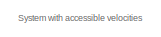
[diagram: root canvas - part 1/10, top center region]
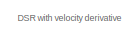
[diagram: root canvas - part 2/10, top left region]
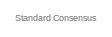
[diagram: root canvas - part 3/10, top right region]
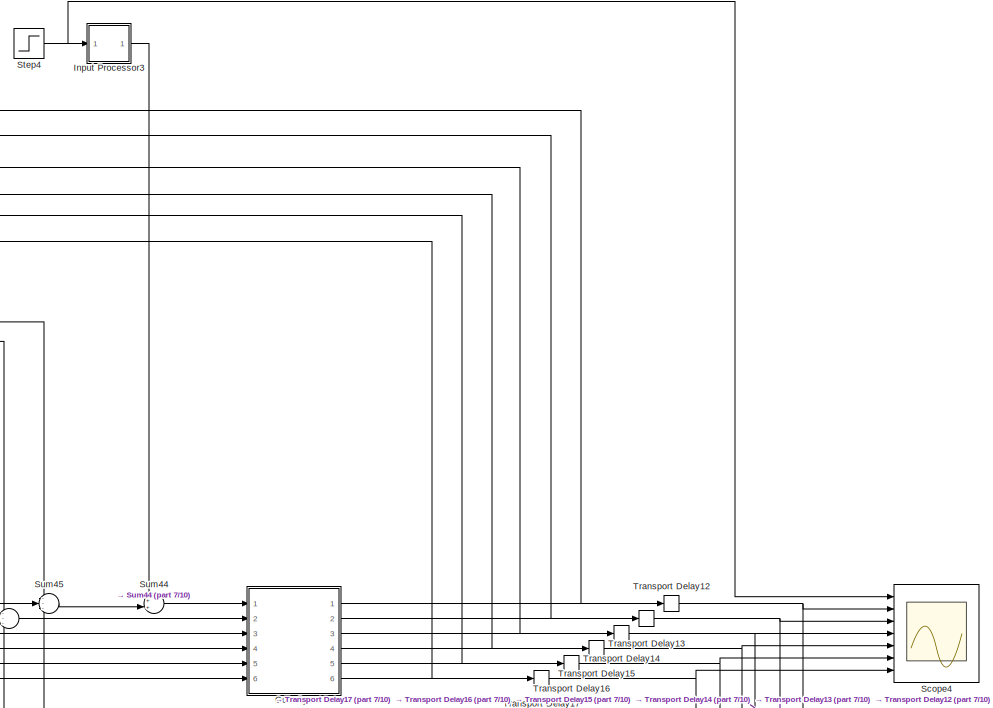
[diagram: root canvas - part 4/10, middle right region]
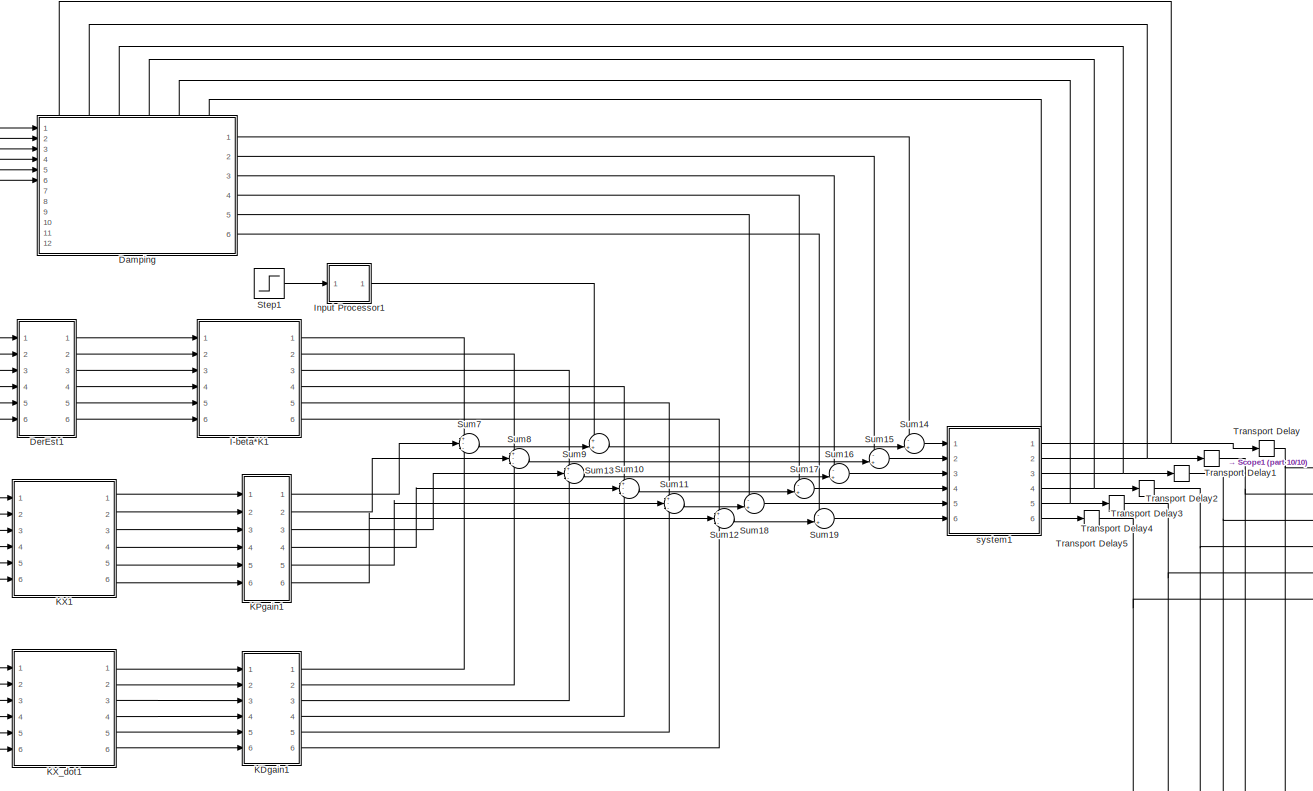
[diagram: root canvas - part 5/10, middle left region]
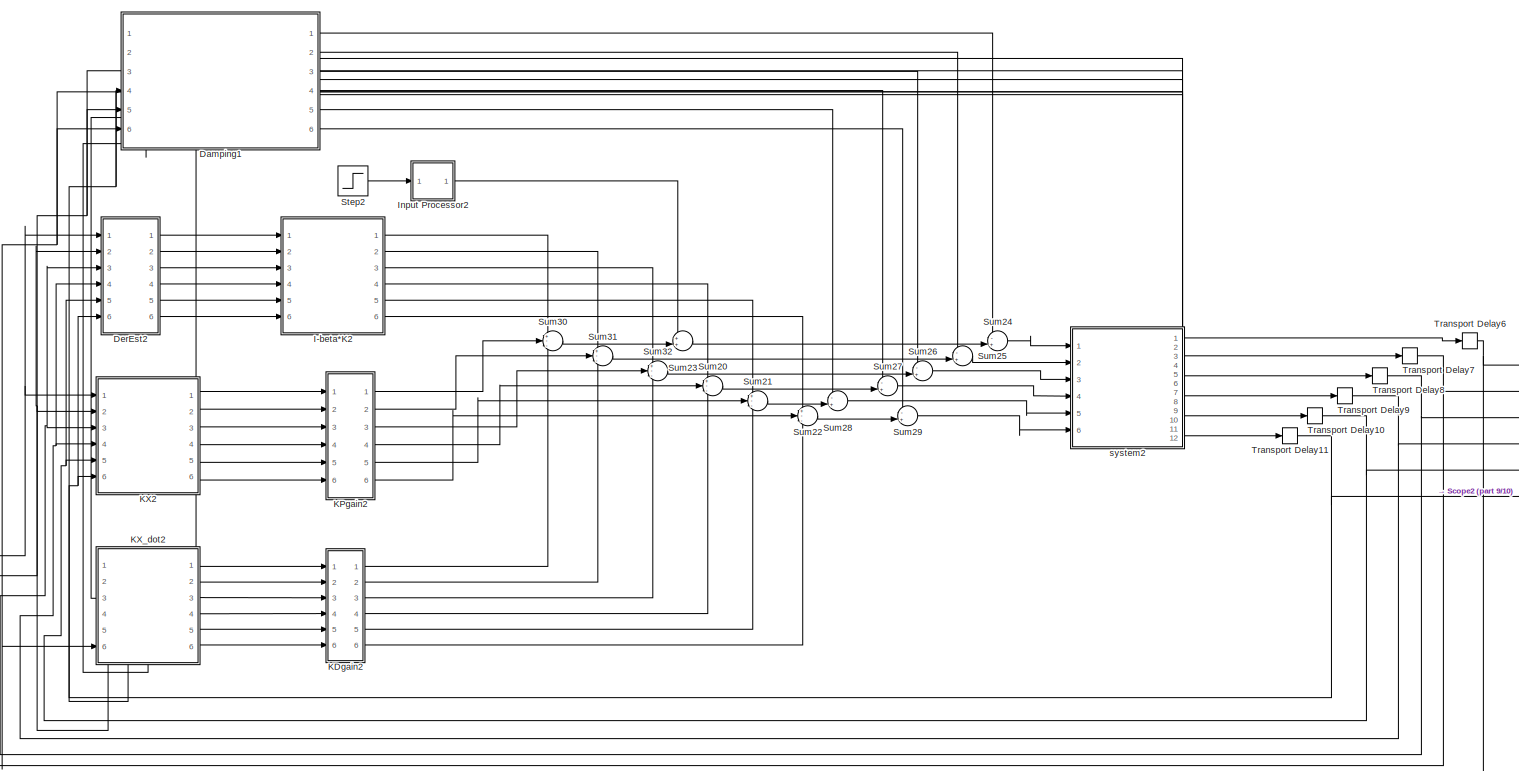
[diagram: root canvas - part 6/10, central region]
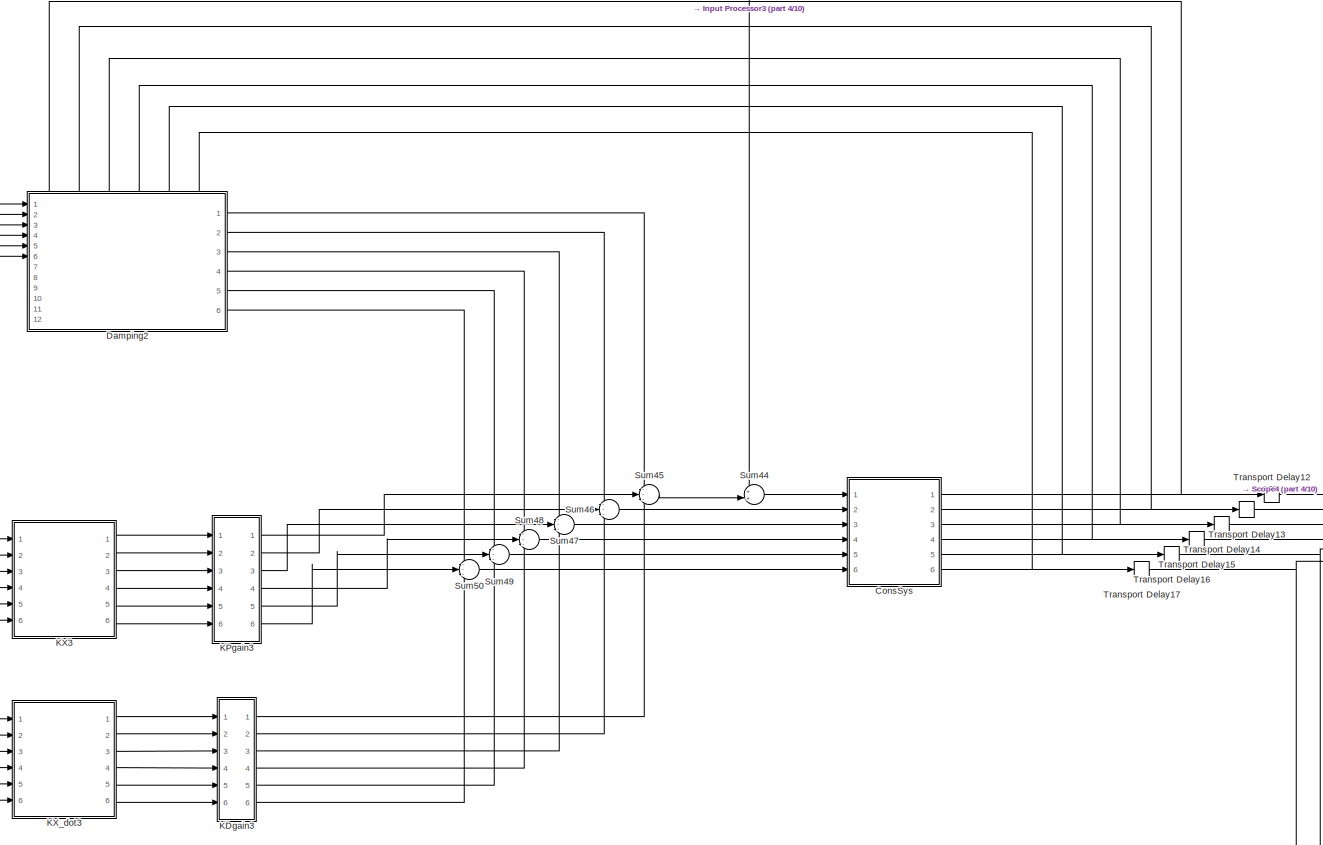
[diagram: root canvas - part 7/10, middle right region]
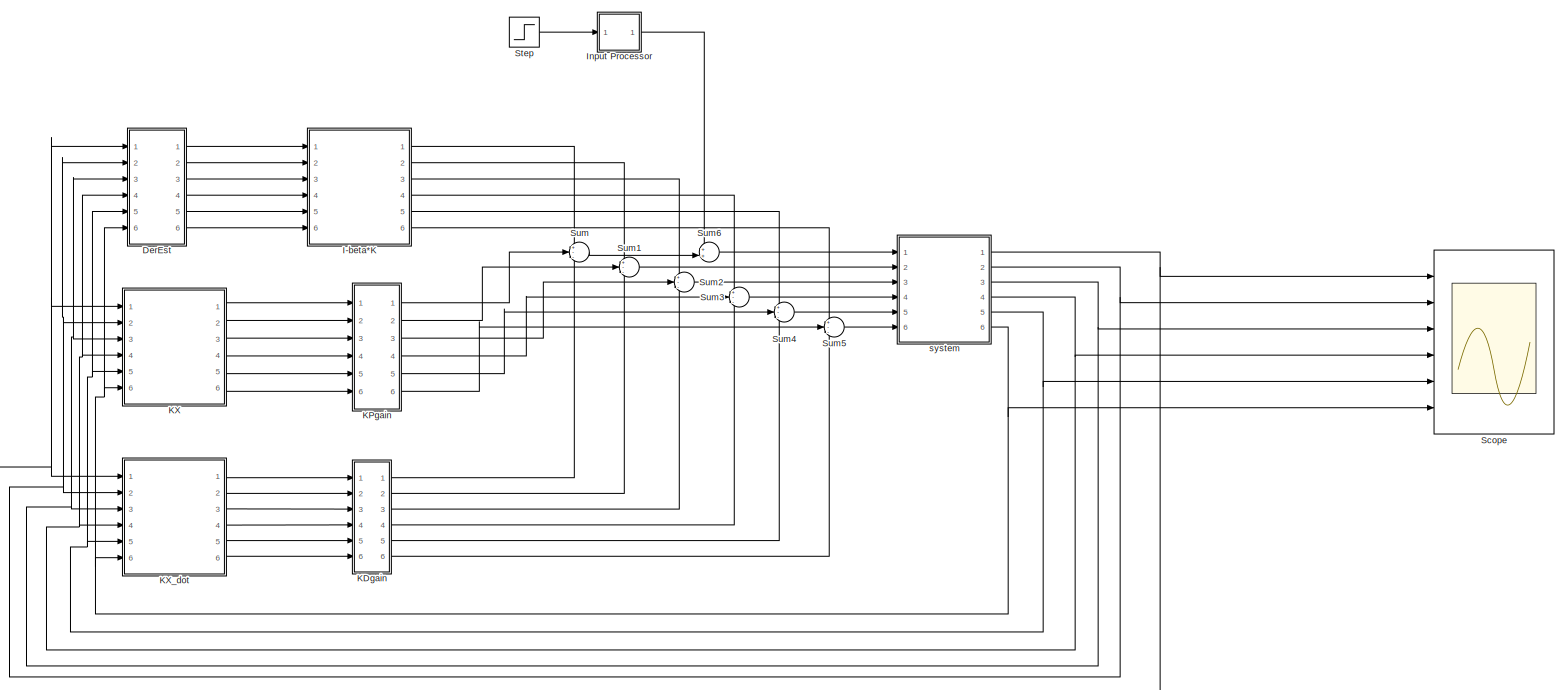
[diagram: root canvas - part 8/10, middle left region]
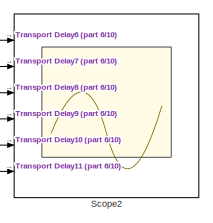
[diagram: root canvas - part 9/10, middle right region]
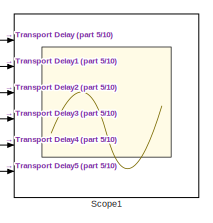
[diagram: root canvas - part 10/10, central region]
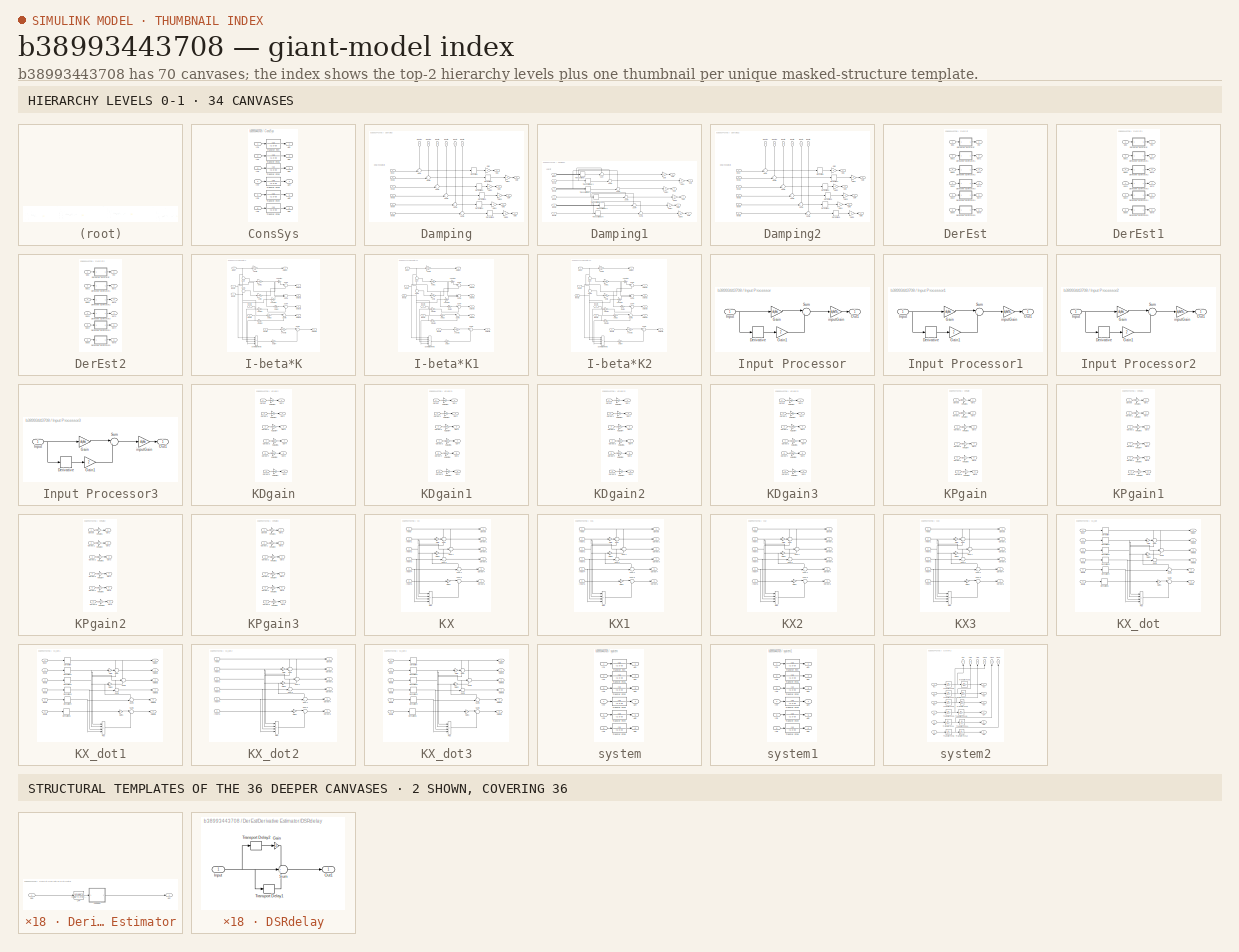
[diagram: thumbnail index - top-2 hierarchy levels (34 canvases) + 2 structural-template representatives of the remaining 36 canvases]
MODEL slx_b38993443708
KIND model
CONFIG AbsTol = auto
CONFIG EnableMultiTasking = off
CONFIG FixedStep = auto
CONFIG MaxStep = auto
CONFIG MinStep = auto
CONFIG RelTol = 1e-3
CONFIG SampleTimeConstraint = Unconstrained
CONFIG SolverName = VariableStepAuto
CONFIG StartTime = 0.0
CONFIG StopTime = 15
BLOCK [SubSystem] ConsSys
  Ports = [6, 6]
  RequestExecContextInheritance = off
BLOCK [Outport] ConsSys/Ag1
BLOCK [Outport] ConsSys/Ag2
  Port = 2
BLOCK [Outport] ConsSys/Ag3
  Port = 3
BLOCK [Outport] ConsSys/Ag4
  Port = 4
BLOCK [Outport] ConsSys/Ag5
  Port = 5
BLOCK [Outport] ConsSys/Ag6
  Port = 6
BLOCK [Inport] ConsSys/In1
BLOCK [Inport] ConsSys/In2
  Port = 2
BLOCK [Inport] ConsSys/In3
  Port = 3
BLOCK [Inport] ConsSys/In4
  Port = 4
BLOCK [Inport] ConsSys/In5
  Port = 5
BLOCK [Inport] ConsSys/In6
  Port = 6
BLOCK [TransferFcn] ConsSys/Transfer Fcn
  Denominator = [1 0 0]
BLOCK [TransferFcn] ConsSys/Transfer Fcn1
  Denominator = [1 0 0]
BLOCK [TransferFcn] ConsSys/Transfer Fcn2
  Denominator = [1 0 0]
BLOCK [TransferFcn] ConsSys/Transfer Fcn3
  Denominator = [1 0 0]
BLOCK [TransferFcn] ConsSys/Transfer Fcn4
  Denominator = [1 0 0]
BLOCK [TransferFcn] ConsSys/Transfer Fcn5
  Denominator = [1 0 0]
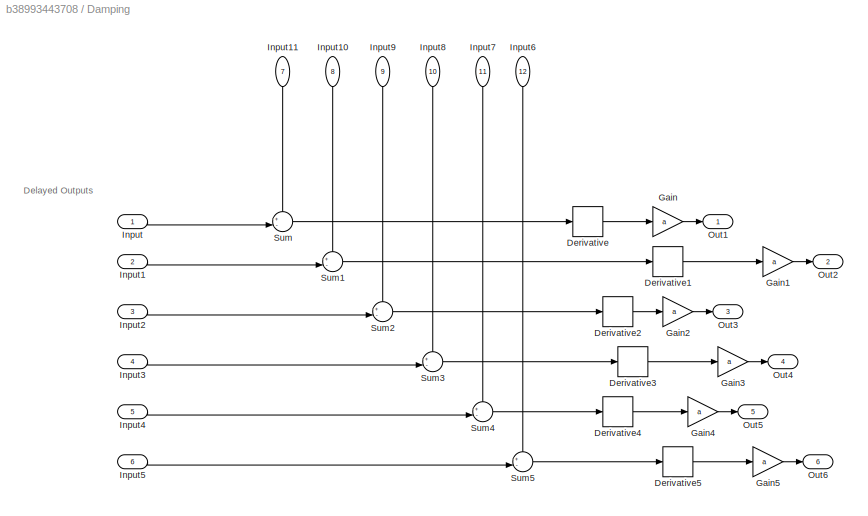
BLOCK [SubSystem] Damping
  PortSchema = {"entries":[{"content":{"sides":[{"content":{"connectorIds":["In1","In2","In3","In4","In5","In6"]},"type":"ConnectorPlacement.EquallySpacedRectSide","uuid":"b372a7be-6970-4f0c-9c0a-91cfb5e8dee7"},{"content":{"connectorIds":["Out1","Out2","Out3","Out4","Out5","Out6"],"side":"RIGHT"},"type":"ConnectorPlacement.EquallySpacedRectSide","uuid":"0b2444b3-7469-468f-9337-a7c17c408c74"},{"content":{"connect...<+343ch>
  Ports = [12, 6]
  RequestExecContextInheritance = off
BLOCK [Derivative] Damping/Derivative
BLOCK [Derivative] Damping/Derivative1
BLOCK [Derivative] Damping/Derivative2
BLOCK [Derivative] Damping/Derivative3
BLOCK [Derivative] Damping/Derivative4
BLOCK [Derivative] Damping/Derivative5
BLOCK [Gain] Damping/Gain
  Gain = a
BLOCK [Gain] Damping/Gain1
  Gain = a
BLOCK [Gain] Damping/Gain2
  Gain = a
BLOCK [Gain] Damping/Gain3
  Gain = a
BLOCK [Gain] Damping/Gain4
  Gain = a
BLOCK [Gain] Damping/Gain5
  Gain = a
BLOCK [Inport] Damping/Input
BLOCK [Inport] Damping/Input1
  Port = 2
BLOCK [Inport] Damping/Input10
  NameLocation = left
  Port = 8
BLOCK [Inport] Damping/Input11
  NameLocation = left
  Port = 7
BLOCK [Inport] Damping/Input2
  Port = 3
BLOCK [Inport] Damping/Input3
  Port = 4
BLOCK [Inport] Damping/Input4
  Port = 5
BLOCK [Inport] Damping/Input5
  Port = 6
BLOCK [Inport] Damping/Input6
  NameLocation = left
  Port = 12
BLOCK [Inport] Damping/Input7
  NameLocation = left
  Port = 11
BLOCK [Inport] Damping/Input8
  NameLocation = left
  Port = 10
BLOCK [Inport] Damping/Input9
  NameLocation = left
  Port = 9
BLOCK [Outport] Damping/Out1
BLOCK [Outport] Damping/Out2
  Port = 2
BLOCK [Outport] Damping/Out3
  Port = 3
BLOCK [Outport] Damping/Out4
  Port = 4
BLOCK [Outport] Damping/Out5
  Port = 5
BLOCK [Outport] Damping/Out6
  Port = 6
BLOCK [Sum] Damping/Sum
  Inputs = +-|
  Ports = [2, 1]
BLOCK [Sum] Damping/Sum1
  Inputs = +-|
  Ports = [2, 1]
BLOCK [Sum] Damping/Sum2
  Inputs = +-|
  Ports = [2, 1]
BLOCK [Sum] Damping/Sum3
  Inputs = +-|
  Ports = [2, 1]
BLOCK [Sum] Damping/Sum4
  Inputs = +-|
  Ports = [2, 1]
BLOCK [Sum] Damping/Sum5
  Inputs = +-|
  Ports = [2, 1]
BLOCK [SubSystem] Damping1
  Commented = on
  Ports = [6, 6]
  RequestExecContextInheritance = off
BLOCK [Gain] Damping1/Gain
  Gain = a
BLOCK [Gain] Damping1/Gain1
  Gain = a
BLOCK [Gain] Damping1/Gain2
  Gain = a
BLOCK [Gain] Damping1/Gain3
  Gain = a
BLOCK [Gain] Damping1/Gain4
  Gain = a
BLOCK [Gain] Damping1/Gain5
  Gain = a
BLOCK [Inport] Damping1/Input
BLOCK [Inport] Damping1/Input1
  Port = 2
BLOCK [Inport] Damping1/Input2
  Port = 3
BLOCK [Inport] Damping1/Input3
  Port = 4
BLOCK [Inport] Damping1/Input4
  Port = 5
BLOCK [Inport] Damping1/Input5
  Port = 6
BLOCK [Outport] Damping1/Out1
BLOCK [Outport] Damping1/Out2
  Port = 2
BLOCK [Outport] Damping1/Out3
  Port = 3
BLOCK [Outport] Damping1/Out4
  Port = 4
BLOCK [Outport] Damping1/Out5
  Port = 5
BLOCK [Outport] Damping1/Out6
  Port = 6
BLOCK [Sum] Damping1/Sum
  Inputs = +-|
  Ports = [2, 1]
BLOCK [Sum] Damping1/Sum1
  Inputs = +-|
  Ports = [2, 1]
BLOCK [Sum] Damping1/Sum2
  Inputs = +-|
  Ports = [2, 1]
BLOCK [Sum] Damping1/Sum3
  Inputs = +-|
  Ports = [2, 1]
BLOCK [Sum] Damping1/Sum4
  Inputs = +-|
  Ports = [2, 1]
BLOCK [Sum] Damping1/Sum5
  Inputs = +-|
  Ports = [2, 1]
BLOCK [TransportDelay] Damping1/Transport Delay
  DelayTime = delay_a
  Ports = [1, 1]
BLOCK [TransportDelay] Damping1/Transport Delay1
  DelayTime = delay_a
  Ports = [1, 1]
BLOCK [TransportDelay] Damping1/Transport Delay2
  DelayTime = delay_a
  Ports = [1, 1]
BLOCK [TransportDelay] Damping1/Transport Delay3
  DelayTime = delay_a
  Ports = [1, 1]
BLOCK [TransportDelay] Damping1/Transport Delay4
  DelayTime = delay_a
  Ports = [1, 1]
BLOCK [TransportDelay] Damping1/Transport Delay5
  DelayTime = delay_a
  Ports = [1, 1]
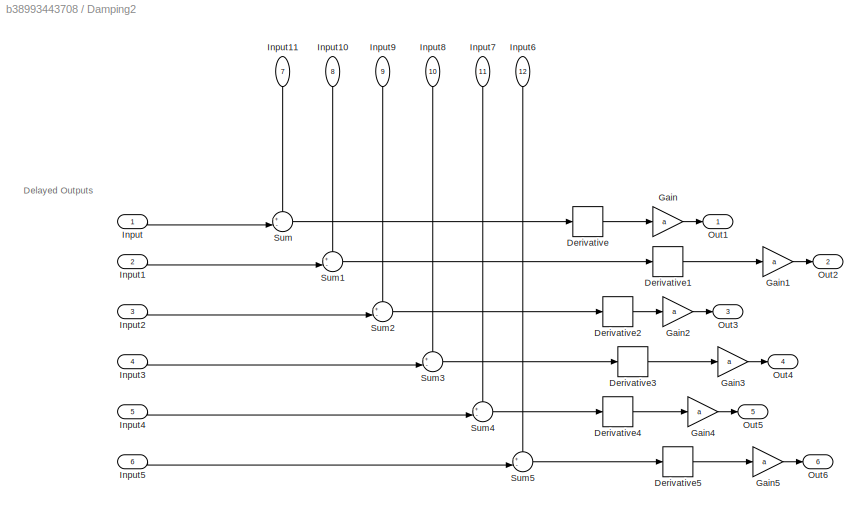
BLOCK [SubSystem] Damping2
  PortSchema = {"entries":[{"content":{"sides":[{"content":{"connectorIds":["In1","In2","In3","In4","In5","In6"]},"type":"ConnectorPlacement.EquallySpacedRectSide","uuid":"b372a7be-6970-4f0c-9c0a-91cfb5e8dee7"},{"content":{"connectorIds":["Out1","Out2","Out3","Out4","Out5","Out6"],"side":"RIGHT"},"type":"ConnectorPlacement.EquallySpacedRectSide","uuid":"0b2444b3-7469-468f-9337-a7c17c408c74"},{"content":{"connect...<+343ch>
  Ports = [12, 6]
  RequestExecContextInheritance = off
BLOCK [Derivative] Damping2/Derivative
BLOCK [Derivative] Damping2/Derivative1
BLOCK [Derivative] Damping2/Derivative2
BLOCK [Derivative] Damping2/Derivative3
BLOCK [Derivative] Damping2/Derivative4
BLOCK [Derivative] Damping2/Derivative5
BLOCK [Gain] Damping2/Gain
  Gain = a
BLOCK [Gain] Damping2/Gain1
  Gain = a
BLOCK [Gain] Damping2/Gain2
  Gain = a
BLOCK [Gain] Damping2/Gain3
  Gain = a
BLOCK [Gain] Damping2/Gain4
  Gain = a
BLOCK [Gain] Damping2/Gain5
  Gain = a
BLOCK [Inport] Damping2/Input
BLOCK [Inport] Damping2/Input1
  Port = 2
BLOCK [Inport] Damping2/Input10
  NameLocation = left
  Port = 8
BLOCK [Inport] Damping2/Input11
  NameLocation = left
  Port = 7
BLOCK [Inport] Damping2/Input2
  Port = 3
BLOCK [Inport] Damping2/Input3
  Port = 4
BLOCK [Inport] Damping2/Input4
  Port = 5
BLOCK [Inport] Damping2/Input5
  Port = 6
BLOCK [Inport] Damping2/Input6
  NameLocation = left
  Port = 12
BLOCK [Inport] Damping2/Input7
  NameLocation = left
  Port = 11
BLOCK [Inport] Damping2/Input8
  NameLocation = left
  Port = 10
BLOCK [Inport] Damping2/Input9
  NameLocation = left
  Port = 9
BLOCK [Outport] Damping2/Out1
BLOCK [Outport] Damping2/Out2
  Port = 2
BLOCK [Outport] Damping2/Out3
  Port = 3
BLOCK [Outport] Damping2/Out4
  Port = 4
BLOCK [Outport] Damping2/Out5
  Port = 5
BLOCK [Outport] Damping2/Out6
  Port = 6
BLOCK [Sum] Damping2/Sum
  Inputs = +-|
  Ports = [2, 1]
BLOCK [Sum] Damping2/Sum1
  Inputs = +-|
  Ports = [2, 1]
BLOCK [Sum] Damping2/Sum2
  Inputs = +-|
  Ports = [2, 1]
BLOCK [Sum] Damping2/Sum3
  Inputs = +-|
  Ports = [2, 1]
BLOCK [Sum] Damping2/Sum4
  Inputs = +-|
  Ports = [2, 1]
BLOCK [Sum] Damping2/Sum5
  Inputs = +-|
  Ports = [2, 1]
BLOCK [SubSystem] DerEst
  Commented = on
  Ports = [6, 6]
  RequestExecContextInheritance = off
BLOCK [SubSystem] DerEst/Derivative Estimator
  Ports = [1, 1]
  RequestExecContextInheritance = off
BLOCK [SubSystem] DerEst/Derivative Estimator/DSRdelay
  Ports = [1, 1]
  RequestExecContextInheritance = off
BLOCK [Gain] DerEst/Derivative Estimator/DSRdelay/Gain
  Gain = 2
BLOCK [Inport] DerEst/Derivative Estimator/DSRdelay/Input
BLOCK [Outport] DerEst/Derivative Estimator/DSRdelay/Out1
BLOCK [Sum] DerEst/Derivative Estimator/DSRdelay/Sum
  Inputs = -++
  Ports = [3, 1]
BLOCK [TransportDelay] DerEst/Derivative Estimator/DSRdelay/Transport Delay1
  DelayTime = 2*delay
  Ports = [1, 1]
BLOCK [TransportDelay] DerEst/Derivative Estimator/DSRdelay/Transport Delay2
  DelayTime = delay
  Ports = [1, 1]
BLOCK [TransferFcn] DerEst/Derivative Estimator/LPF
  Denominator = [delay^2 2*omega*delay^2 omega^2*delay^2]
  Numerator = [omega^2]
BLOCK [Outport] DerEst/Derivative Estimator/est
BLOCK [Inport] DerEst/Derivative Estimator/pos
BLOCK [SubSystem] DerEst/Derivative Estimator1
  Ports = [1, 1]
  RequestExecContextInheritance = off
BLOCK [SubSystem] DerEst/Derivative Estimator1/DSRdelay
  Ports = [1, 1]
  RequestExecContextInheritance = off
BLOCK [Gain] DerEst/Derivative Estimator1/DSRdelay/Gain
  Gain = 2
BLOCK [Inport] DerEst/Derivative Estimator1/DSRdelay/Input
BLOCK [Outport] DerEst/Derivative Estimator1/DSRdelay/Out1
BLOCK [Sum] DerEst/Derivative Estimator1/DSRdelay/Sum
  Inputs = -++
  Ports = [3, 1]
BLOCK [TransportDelay] DerEst/Derivative Estimator1/DSRdelay/Transport Delay1
  DelayTime = 2*delay
  Ports = [1, 1]
BLOCK [TransportDelay] DerEst/Derivative Estimator1/DSRdelay/Transport Delay2
  DelayTime = delay
  Ports = [1, 1]
BLOCK [TransferFcn] DerEst/Derivative Estimator1/LPF
  Denominator = [delay^2 2*omega*delay^2 omega^2*delay^2]
  Numerator = [omega^2]
BLOCK [Outport] DerEst/Derivative Estimator1/est
BLOCK [Inport] DerEst/Derivative Estimator1/pos
BLOCK [SubSystem] DerEst/Derivative Estimator2
  Ports = [1, 1]
  RequestExecContextInheritance = off
BLOCK [SubSystem] DerEst/Derivative Estimator2/DSRdelay
  Ports = [1, 1]
  RequestExecContextInheritance = off
BLOCK [Gain] DerEst/Derivative Estimator2/DSRdelay/Gain
  Gain = 2
BLOCK [Inport] DerEst/Derivative Estimator2/DSRdelay/Input
BLOCK [Outport] DerEst/Derivative Estimator2/DSRdelay/Out1
BLOCK [Sum] DerEst/Derivative Estimator2/DSRdelay/Sum
  Inputs = -++
  Ports = [3, 1]
BLOCK [TransportDelay] DerEst/Derivative Estimator2/DSRdelay/Transport Delay1
  DelayTime = 2*delay
  Ports = [1, 1]
BLOCK [TransportDelay] DerEst/Derivative Estimator2/DSRdelay/Transport Delay2
  DelayTime = delay
  Ports = [1, 1]
BLOCK [TransferFcn] DerEst/Derivative Estimator2/LPF
  Denominator = [delay^2 2*omega*delay^2 omega^2*delay^2]
  Numerator = [omega^2]
BLOCK [Outport] DerEst/Derivative Estimator2/est
BLOCK [Inport] DerEst/Derivative Estimator2/pos
BLOCK [SubSystem] DerEst/Derivative Estimator3
  Ports = [1, 1]
  RequestExecContextInheritance = off
BLOCK [SubSystem] DerEst/Derivative Estimator3/DSRdelay
  Ports = [1, 1]
  RequestExecContextInheritance = off
BLOCK [Gain] DerEst/Derivative Estimator3/DSRdelay/Gain
  Gain = 2
BLOCK [Inport] DerEst/Derivative Estimator3/DSRdelay/Input
BLOCK [Outport] DerEst/Derivative Estimator3/DSRdelay/Out1
BLOCK [Sum] DerEst/Derivative Estimator3/DSRdelay/Sum
  Inputs = -++
  Ports = [3, 1]
BLOCK [TransportDelay] DerEst/Derivative Estimator3/DSRdelay/Transport Delay1
  DelayTime = 2*delay
  Ports = [1, 1]
BLOCK [TransportDelay] DerEst/Derivative Estimator3/DSRdelay/Transport Delay2
  DelayTime = delay
  Ports = [1, 1]
BLOCK [TransferFcn] DerEst/Derivative Estimator3/LPF
  Denominator = [delay^2 2*omega*delay^2 omega^2*delay^2]
  Numerator = [omega^2]
BLOCK [Outport] DerEst/Derivative Estimator3/est
BLOCK [Inport] DerEst/Derivative Estimator3/pos
BLOCK [SubSystem] DerEst/Derivative Estimator4
  Ports = [1, 1]
  RequestExecContextInheritance = off
BLOCK [SubSystem] DerEst/Derivative Estimator4/DSRdelay
  Ports = [1, 1]
  RequestExecContextInheritance = off
BLOCK [Gain] DerEst/Derivative Estimator4/DSRdelay/Gain
  Gain = 2
BLOCK [Inport] DerEst/Derivative Estimator4/DSRdelay/Input
BLOCK [Outport] DerEst/Derivative Estimator4/DSRdelay/Out1
BLOCK [Sum] DerEst/Derivative Estimator4/DSRdelay/Sum
  Inputs = -++
  Ports = [3, 1]
BLOCK [TransportDelay] DerEst/Derivative Estimator4/DSRdelay/Transport Delay1
  DelayTime = 2*delay
  Ports = [1, 1]
BLOCK [TransportDelay] DerEst/Derivative Estimator4/DSRdelay/Transport Delay2
  DelayTime = delay
  Ports = [1, 1]
BLOCK [TransferFcn] DerEst/Derivative Estimator4/LPF
  Denominator = [delay^2 2*omega*delay^2 omega^2*delay^2]
  Numerator = [omega^2]
BLOCK [Outport] DerEst/Derivative Estimator4/est
BLOCK [Inport] DerEst/Derivative Estimator4/pos
BLOCK [SubSystem] DerEst/Derivative Estimator5
  Ports = [1, 1]
  RequestExecContextInheritance = off
BLOCK [SubSystem] DerEst/Derivative Estimator5/DSRdelay
  Ports = [1, 1]
  RequestExecContextInheritance = off
BLOCK [Gain] DerEst/Derivative Estimator5/DSRdelay/Gain
  Gain = 2
BLOCK [Inport] DerEst/Derivative Estimator5/DSRdelay/Input
BLOCK [Outport] DerEst/Derivative Estimator5/DSRdelay/Out1
BLOCK [Sum] DerEst/Derivative Estimator5/DSRdelay/Sum
  Inputs = -++
  Ports = [3, 1]
BLOCK [TransportDelay] DerEst/Derivative Estimator5/DSRdelay/Transport Delay1
  DelayTime = 2*delay
  Ports = [1, 1]
BLOCK [TransportDelay] DerEst/Derivative Estimator5/DSRdelay/Transport Delay2
  DelayTime = delay
  Ports = [1, 1]
BLOCK [TransferFcn] DerEst/Derivative Estimator5/LPF
  Denominator = [delay^2 2*omega*delay^2 omega^2*delay^2]
  Numerator = [omega^2]
BLOCK [Outport] DerEst/Derivative Estimator5/est
BLOCK [Inport] DerEst/Derivative Estimator5/pos
BLOCK [Outport] DerEst/est
BLOCK [Outport] DerEst/est1
  Port = 2
BLOCK [Outport] DerEst/est2
  Port = 3
BLOCK [Outport] DerEst/est3
  Port = 4
BLOCK [Outport] DerEst/est4
  Port = 5
BLOCK [Outport] DerEst/est5
  Port = 6
BLOCK [Inport] DerEst/pos
BLOCK [Inport] DerEst/pos1
  Port = 2
BLOCK [Inport] DerEst/pos2
  Port = 3
BLOCK [Inport] DerEst/pos3
  Port = 4
BLOCK [Inport] DerEst/pos4
  Port = 5
BLOCK [Inport] DerEst/pos5
  Port = 6
BLOCK [SubSystem] DerEst1
  Ports = [6, 6]
  RequestExecContextInheritance = off
BLOCK [SubSystem] DerEst1/Derivative Estimator
  Ports = [1, 1]
  RequestExecContextInheritance = off
BLOCK [SubSystem] DerEst1/Derivative Estimator/DSRdelay
  Ports = [1, 1]
  RequestExecContextInheritance = off
BLOCK [Gain] DerEst1/Derivative Estimator/DSRdelay/Gain
  Gain = 2
BLOCK [Inport] DerEst1/Derivative Estimator/DSRdelay/Input
BLOCK [Outport] DerEst1/Derivative Estimator/DSRdelay/Out1
BLOCK [Sum] DerEst1/Derivative Estimator/DSRdelay/Sum
  Inputs = -++
  Ports = [3, 1]
BLOCK [TransportDelay] DerEst1/Derivative Estimator/DSRdelay/Transport Delay1
  DelayTime = 2*delay
  Ports = [1, 1]
BLOCK [TransportDelay] DerEst1/Derivative Estimator/DSRdelay/Transport Delay2
  DelayTime = delay
  Ports = [1, 1]
BLOCK [TransferFcn] DerEst1/Derivative Estimator/LPF
  Denominator = [delay^2 2*omega*delay^2 omega^2*delay^2]
  Numerator = [omega^2]
BLOCK [Outport] DerEst1/Derivative Estimator/est
BLOCK [Inport] DerEst1/Derivative Estimator/pos
BLOCK [SubSystem] DerEst1/Derivative Estimator1
  Ports = [1, 1]
  RequestExecContextInheritance = off
BLOCK [SubSystem] DerEst1/Derivative Estimator1/DSRdelay
  Ports = [1, 1]
  RequestExecContextInheritance = off
BLOCK [Gain] DerEst1/Derivative Estimator1/DSRdelay/Gain
  Gain = 2
BLOCK [Inport] DerEst1/Derivative Estimator1/DSRdelay/Input
BLOCK [Outport] DerEst1/Derivative Estimator1/DSRdelay/Out1
BLOCK [Sum] DerEst1/Derivative Estimator1/DSRdelay/Sum
  Inputs = -++
  Ports = [3, 1]
BLOCK [TransportDelay] DerEst1/Derivative Estimator1/DSRdelay/Transport Delay1
  DelayTime = 2*delay
  Ports = [1, 1]
BLOCK [TransportDelay] DerEst1/Derivative Estimator1/DSRdelay/Transport Delay2
  DelayTime = delay
  Ports = [1, 1]
BLOCK [TransferFcn] DerEst1/Derivative Estimator1/LPF
  Denominator = [delay^2 2*omega*delay^2 omega^2*delay^2]
  Numerator = [omega^2]
BLOCK [Outport] DerEst1/Derivative Estimator1/est
BLOCK [Inport] DerEst1/Derivative Estimator1/pos
BLOCK [SubSystem] DerEst1/Derivative Estimator2
  Ports = [1, 1]
  RequestExecContextInheritance = off
BLOCK [SubSystem] DerEst1/Derivative Estimator2/DSRdelay
  Ports = [1, 1]
  RequestExecContextInheritance = off
BLOCK [Gain] DerEst1/Derivative Estimator2/DSRdelay/Gain
  Gain = 2
BLOCK [Inport] DerEst1/Derivative Estimator2/DSRdelay/Input
BLOCK [Outport] DerEst1/Derivative Estimator2/DSRdelay/Out1
BLOCK [Sum] DerEst1/Derivative Estimator2/DSRdelay/Sum
  Inputs = -++
  Ports = [3, 1]
BLOCK [TransportDelay] DerEst1/Derivative Estimator2/DSRdelay/Transport Delay1
  DelayTime = 2*delay
  Ports = [1, 1]
BLOCK [TransportDelay] DerEst1/Derivative Estimator2/DSRdelay/Transport Delay2
  DelayTime = delay
  Ports = [1, 1]
BLOCK [TransferFcn] DerEst1/Derivative Estimator2/LPF
  Denominator = [delay^2 2*omega*delay^2 omega^2*delay^2]
  Numerator = [omega^2]
BLOCK [Outport] DerEst1/Derivative Estimator2/est
BLOCK [Inport] DerEst1/Derivative Estimator2/pos
BLOCK [SubSystem] DerEst1/Derivative Estimator3
  Ports = [1, 1]
  RequestExecContextInheritance = off
BLOCK [SubSystem] DerEst1/Derivative Estimator3/DSRdelay
  Ports = [1, 1]
  RequestExecContextInheritance = off
BLOCK [Gain] DerEst1/Derivative Estimator3/DSRdelay/Gain
  Gain = 2
BLOCK [Inport] DerEst1/Derivative Estimator3/DSRdelay/Input
BLOCK [Outport] DerEst1/Derivative Estimator3/DSRdelay/Out1
BLOCK [Sum] DerEst1/Derivative Estimator3/DSRdelay/Sum
  Inputs = -++
  Ports = [3, 1]
BLOCK [TransportDelay] DerEst1/Derivative Estimator3/DSRdelay/Transport Delay1
  DelayTime = 2*delay
  Ports = [1, 1]
BLOCK [TransportDelay] DerEst1/Derivative Estimator3/DSRdelay/Transport Delay2
  DelayTime = delay
  Ports = [1, 1]
BLOCK [TransferFcn] DerEst1/Derivative Estimator3/LPF
  Denominator = [delay^2 2*omega*delay^2 omega^2*delay^2]
  Numerator = [omega^2]
BLOCK [Outport] DerEst1/Derivative Estimator3/est
BLOCK [Inport] DerEst1/Derivative Estimator3/pos
BLOCK [SubSystem] DerEst1/Derivative Estimator4
  Ports = [1, 1]
  RequestExecContextInheritance = off
BLOCK [SubSystem] DerEst1/Derivative Estimator4/DSRdelay
  Ports = [1, 1]
  RequestExecContextInheritance = off
BLOCK [Gain] DerEst1/Derivative Estimator4/DSRdelay/Gain
  Gain = 2
BLOCK [Inport] DerEst1/Derivative Estimator4/DSRdelay/Input
BLOCK [Outport] DerEst1/Derivative Estimator4/DSRdelay/Out1
BLOCK [Sum] DerEst1/Derivative Estimator4/DSRdelay/Sum
  Inputs = -++
  Ports = [3, 1]
BLOCK [TransportDelay] DerEst1/Derivative Estimator4/DSRdelay/Transport Delay1
  DelayTime = 2*delay
  Ports = [1, 1]
BLOCK [TransportDelay] DerEst1/Derivative Estimator4/DSRdelay/Transport Delay2
  DelayTime = delay
  Ports = [1, 1]
BLOCK [TransferFcn] DerEst1/Derivative Estimator4/LPF
  Denominator = [delay^2 2*omega*delay^2 omega^2*delay^2]
  Numerator = [omega^2]
BLOCK [Outport] DerEst1/Derivative Estimator4/est
BLOCK [Inport] DerEst1/Derivative Estimator4/pos
BLOCK [SubSystem] DerEst1/Derivative Estimator5
  Ports = [1, 1]
  RequestExecContextInheritance = off
BLOCK [SubSystem] DerEst1/Derivative Estimator5/DSRdelay
  Ports = [1, 1]
  RequestExecContextInheritance = off
BLOCK [Gain] DerEst1/Derivative Estimator5/DSRdelay/Gain
  Gain = 2
BLOCK [Inport] DerEst1/Derivative Estimator5/DSRdelay/Input
BLOCK [Outport] DerEst1/Derivative Estimator5/DSRdelay/Out1
BLOCK [Sum] DerEst1/Derivative Estimator5/DSRdelay/Sum
  Inputs = -++
  Ports = [3, 1]
BLOCK [TransportDelay] DerEst1/Derivative Estimator5/DSRdelay/Transport Delay1
  DelayTime = 2*delay
  Ports = [1, 1]
BLOCK [TransportDelay] DerEst1/Derivative Estimator5/DSRdelay/Transport Delay2
  DelayTime = delay
  Ports = [1, 1]
BLOCK [TransferFcn] DerEst1/Derivative Estimator5/LPF
  Denominator = [delay^2 2*omega*delay^2 omega^2*delay^2]
  Numerator = [omega^2]
BLOCK [Outport] DerEst1/Derivative Estimator5/est
BLOCK [Inport] DerEst1/Derivative Estimator5/pos
BLOCK [Outport] DerEst1/est
BLOCK [Outport] DerEst1/est1
  Port = 2
BLOCK [Outport] DerEst1/est2
  Port = 3
BLOCK [Outport] DerEst1/est3
  Port = 4
BLOCK [Outport] DerEst1/est4
  Port = 5
BLOCK [Outport] DerEst1/est5
  Port = 6
BLOCK [Inport] DerEst1/pos
BLOCK [Inport] DerEst1/pos1
  Port = 2
BLOCK [Inport] DerEst1/pos2
  Port = 3
BLOCK [Inport] DerEst1/pos3
  Port = 4
BLOCK [Inport] DerEst1/pos4
  Port = 5
BLOCK [Inport] DerEst1/pos5
  Port = 6
BLOCK [SubSystem] DerEst2
  Commented = on
  Ports = [6, 6]
  RequestExecContextInheritance = off
BLOCK [SubSystem] DerEst2/Derivative Estimator
  Ports = [1, 1]
  RequestExecContextInheritance = off
BLOCK [SubSystem] DerEst2/Derivative Estimator/DSRdelay
  Ports = [1, 1]
  RequestExecContextInheritance = off
BLOCK [Gain] DerEst2/Derivative Estimator/DSRdelay/Gain
  Gain = 2
BLOCK [Inport] DerEst2/Derivative Estimator/DSRdelay/Input
BLOCK [Outport] DerEst2/Derivative Estimator/DSRdelay/Out1
BLOCK [Sum] DerEst2/Derivative Estimator/DSRdelay/Sum
  Inputs = -++
  Ports = [3, 1]
BLOCK [TransportDelay] DerEst2/Derivative Estimator/DSRdelay/Transport Delay1
  DelayTime = 2*delay
  Ports = [1, 1]
BLOCK [TransportDelay] DerEst2/Derivative Estimator/DSRdelay/Transport Delay2
  DelayTime = delay
  Ports = [1, 1]
BLOCK [TransferFcn] DerEst2/Derivative Estimator/LPF
  Denominator = [delay^2 2*omega*delay^2 omega^2*delay^2]
  Numerator = [omega^2]
BLOCK [Outport] DerEst2/Derivative Estimator/est
BLOCK [Inport] DerEst2/Derivative Estimator/pos
BLOCK [SubSystem] DerEst2/Derivative Estimator1
  Ports = [1, 1]
  RequestExecContextInheritance = off
BLOCK [SubSystem] DerEst2/Derivative Estimator1/DSRdelay
  Ports = [1, 1]
  RequestExecContextInheritance = off
BLOCK [Gain] DerEst2/Derivative Estimator1/DSRdelay/Gain
  Gain = 2
BLOCK [Inport] DerEst2/Derivative Estimator1/DSRdelay/Input
BLOCK [Outport] DerEst2/Derivative Estimator1/DSRdelay/Out1
BLOCK [Sum] DerEst2/Derivative Estimator1/DSRdelay/Sum
  Inputs = -++
  Ports = [3, 1]
BLOCK [TransportDelay] DerEst2/Derivative Estimator1/DSRdelay/Transport Delay1
  DelayTime = 2*delay
  Ports = [1, 1]
BLOCK [TransportDelay] DerEst2/Derivative Estimator1/DSRdelay/Transport Delay2
  DelayTime = delay
  Ports = [1, 1]
BLOCK [TransferFcn] DerEst2/Derivative Estimator1/LPF
  Denominator = [delay^2 2*omega*delay^2 omega^2*delay^2]
  Numerator = [omega^2]
BLOCK [Outport] DerEst2/Derivative Estimator1/est
BLOCK [Inport] DerEst2/Derivative Estimator1/pos
BLOCK [SubSystem] DerEst2/Derivative Estimator2
  Ports = [1, 1]
  RequestExecContextInheritance = off
BLOCK [SubSystem] DerEst2/Derivative Estimator2/DSRdelay
  Ports = [1, 1]
  RequestExecContextInheritance = off
BLOCK [Gain] DerEst2/Derivative Estimator2/DSRdelay/Gain
  Gain = 2
BLOCK [Inport] DerEst2/Derivative Estimator2/DSRdelay/Input
BLOCK [Outport] DerEst2/Derivative Estimator2/DSRdelay/Out1
BLOCK [Sum] DerEst2/Derivative Estimator2/DSRdelay/Sum
  Inputs = -++
  Ports = [3, 1]
BLOCK [TransportDelay] DerEst2/Derivative Estimator2/DSRdelay/Transport Delay1
  DelayTime = 2*delay
  Ports = [1, 1]
BLOCK [TransportDelay] DerEst2/Derivative Estimator2/DSRdelay/Transport Delay2
  DelayTime = delay
  Ports = [1, 1]
BLOCK [TransferFcn] DerEst2/Derivative Estimator2/LPF
  Denominator = [delay^2 2*omega*delay^2 omega^2*delay^2]
  Numerator = [omega^2]
BLOCK [Outport] DerEst2/Derivative Estimator2/est
BLOCK [Inport] DerEst2/Derivative Estimator2/pos
BLOCK [SubSystem] DerEst2/Derivative Estimator3
  Ports = [1, 1]
  RequestExecContextInheritance = off
BLOCK [SubSystem] DerEst2/Derivative Estimator3/DSRdelay
  Ports = [1, 1]
  RequestExecContextInheritance = off
BLOCK [Gain] DerEst2/Derivative Estimator3/DSRdelay/Gain
  Gain = 2
BLOCK [Inport] DerEst2/Derivative Estimator3/DSRdelay/Input
BLOCK [Outport] DerEst2/Derivative Estimator3/DSRdelay/Out1
BLOCK [Sum] DerEst2/Derivative Estimator3/DSRdelay/Sum
  Inputs = -++
  Ports = [3, 1]
BLOCK [TransportDelay] DerEst2/Derivative Estimator3/DSRdelay/Transport Delay1
  DelayTime = 2*delay
  Ports = [1, 1]
BLOCK [TransportDelay] DerEst2/Derivative Estimator3/DSRdelay/Transport Delay2
  DelayTime = delay
  Ports = [1, 1]
BLOCK [TransferFcn] DerEst2/Derivative Estimator3/LPF
  Denominator = [delay^2 2*omega*delay^2 omega^2*delay^2]
  Numerator = [omega^2]
BLOCK [Outport] DerEst2/Derivative Estimator3/est
BLOCK [Inport] DerEst2/Derivative Estimator3/pos
BLOCK [SubSystem] DerEst2/Derivative Estimator4
  Ports = [1, 1]
  RequestExecContextInheritance = off
BLOCK [SubSystem] DerEst2/Derivative Estimator4/DSRdelay
  Ports = [1, 1]
  RequestExecContextInheritance = off
BLOCK [Gain] DerEst2/Derivative Estimator4/DSRdelay/Gain
  Gain = 2
BLOCK [Inport] DerEst2/Derivative Estimator4/DSRdelay/Input
BLOCK [Outport] DerEst2/Derivative Estimator4/DSRdelay/Out1
BLOCK [Sum] DerEst2/Derivative Estimator4/DSRdelay/Sum
  Inputs = -++
  Ports = [3, 1]
BLOCK [TransportDelay] DerEst2/Derivative Estimator4/DSRdelay/Transport Delay1
  DelayTime = 2*delay
  Ports = [1, 1]
BLOCK [TransportDelay] DerEst2/Derivative Estimator4/DSRdelay/Transport Delay2
  DelayTime = delay
  Ports = [1, 1]
BLOCK [TransferFcn] DerEst2/Derivative Estimator4/LPF
  Denominator = [delay^2 2*omega*delay^2 omega^2*delay^2]
  Numerator = [omega^2]
BLOCK [Outport] DerEst2/Derivative Estimator4/est
BLOCK [Inport] DerEst2/Derivative Estimator4/pos
BLOCK [SubSystem] DerEst2/Derivative Estimator5
  Ports = [1, 1]
  RequestExecContextInheritance = off
BLOCK [SubSystem] DerEst2/Derivative Estimator5/DSRdelay
  Ports = [1, 1]
  RequestExecContextInheritance = off
BLOCK [Gain] DerEst2/Derivative Estimator5/DSRdelay/Gain
  Gain = 2
BLOCK [Inport] DerEst2/Derivative Estimator5/DSRdelay/Input
BLOCK [Outport] DerEst2/Derivative Estimator5/DSRdelay/Out1
BLOCK [Sum] DerEst2/Derivative Estimator5/DSRdelay/Sum
  Inputs = -++
  Ports = [3, 1]
BLOCK [TransportDelay] DerEst2/Derivative Estimator5/DSRdelay/Transport Delay1
  DelayTime = 2*delay
  Ports = [1, 1]
BLOCK [TransportDelay] DerEst2/Derivative Estimator5/DSRdelay/Transport Delay2
  DelayTime = delay
  Ports = [1, 1]
BLOCK [TransferFcn] DerEst2/Derivative Estimator5/LPF
  Denominator = [delay^2 2*omega*delay^2 omega^2*delay^2]
  Numerator = [omega^2]
BLOCK [Outport] DerEst2/Derivative Estimator5/est
BLOCK [Inport] DerEst2/Derivative Estimator5/pos
BLOCK [Outport] DerEst2/est
BLOCK [Outport] DerEst2/est1
  Port = 2
BLOCK [Outport] DerEst2/est2
  Port = 3
BLOCK [Outport] DerEst2/est3
  Port = 4
BLOCK [Outport] DerEst2/est4
  Port = 5
BLOCK [Outport] DerEst2/est5
  Port = 6
BLOCK [Inport] DerEst2/pos
BLOCK [Inport] DerEst2/pos1
  Port = 2
BLOCK [Inport] DerEst2/pos2
  Port = 3
BLOCK [Inport] DerEst2/pos3
  Port = 4
BLOCK [Inport] DerEst2/pos4
  Port = 5
BLOCK [Inport] DerEst2/pos5
  Port = 6
BLOCK [SubSystem] I-beta*K
  Commented = on
  Ports = [6, 6]
  RequestExecContextInheritance = off
BLOCK [Gain] I-beta*K/1-2beta1
  Gain = 1-2*betac
BLOCK [Gain] I-beta*K/1-2beta2
  Gain = 1-2*betac
BLOCK [Gain] I-beta*K/1-4beta
  Gain = 1-4*betac
BLOCK [Gain] I-beta*K/1-beta
  Gain = 1-betac
BLOCK [Gain] I-beta*K/1-beta1
  Gain = 1-betac
BLOCK [Gain] I-beta*K/1-beta2
  Gain = 1-betac
BLOCK [Inport] I-beta*K/Input
BLOCK [Inport] I-beta*K/Input1
  Port = 2
BLOCK [Inport] I-beta*K/Input2
  Port = 3
BLOCK [Inport] I-beta*K/Input3
  Port = 4
BLOCK [Inport] I-beta*K/Input4
  Port = 5
BLOCK [Inport] I-beta*K/Input5
  Port = 6
BLOCK [Outport] I-beta*K/Output
BLOCK [Outport] I-beta*K/Output1
  Port = 2
BLOCK [Outport] I-beta*K/Output2
  Port = 3
BLOCK [Outport] I-beta*K/Output3
  Port = 4
BLOCK [Outport] I-beta*K/Output4
  Port = 5
BLOCK [Outport] I-beta*K/Output5
  Port = 6
BLOCK [Sum] I-beta*K/Sum
  Inputs = +|+
  Ports = [2, 1]
BLOCK [Sum] I-beta*K/Sum of Elements
  IconShape = rectangular
  Inputs = ++++
  Ports = [4, 1]
BLOCK [Sum] I-beta*K/Sum1
  Inputs = +|+
  Ports = [2, 1]
BLOCK [Sum] I-beta*K/Sum2
  Inputs = +|+
  Ports = [2, 1]
BLOCK [Sum] I-beta*K/Sum3
  Inputs = |++
  Ports = [2, 1]
BLOCK [Sum] I-beta*K/Sum4
  Inputs = |++
  Ports = [2, 1]
BLOCK [Sum] I-beta*K/Sum5
  Inputs = |++
  Ports = [2, 1]
BLOCK [Sum] I-beta*K/Sum6
  Inputs = |++
  Ports = [2, 1]
BLOCK [Gain] I-beta*K/beta
  Gain = betac
BLOCK [Gain] I-beta*K/beta1
  Gain = betac
BLOCK [Gain] I-beta*K/beta2
  Gain = betac
BLOCK [Gain] I-beta*K/beta3
  Gain = betac
BLOCK [Gain] I-beta*K/beta4
  Gain = betac
BLOCK [SubSystem] I-beta*K1
  Ports = [6, 6]
  RequestExecContextInheritance = off
BLOCK [Gain] I-beta*K1/1-2beta1
  Gain = 1-2*betac
BLOCK [Gain] I-beta*K1/1-2beta2
  Gain = 1-2*betac
BLOCK [Gain] I-beta*K1/1-4beta
  Gain = 1-4*betac
BLOCK [Gain] I-beta*K1/1-beta
  Gain = 1-betac
BLOCK [Gain] I-beta*K1/1-beta1
  Gain = 1-betac
BLOCK [Gain] I-beta*K1/1-beta2
  Gain = 1-betac
BLOCK [Inport] I-beta*K1/Input
BLOCK [Inport] I-beta*K1/Input1
  Port = 2
BLOCK [Inport] I-beta*K1/Input2
  Port = 3
BLOCK [Inport] I-beta*K1/Input3
  Port = 4
BLOCK [Inport] I-beta*K1/Input4
  Port = 5
BLOCK [Inport] I-beta*K1/Input5
  Port = 6
BLOCK [Outport] I-beta*K1/Output
BLOCK [Outport] I-beta*K1/Output1
  Port = 2
BLOCK [Outport] I-beta*K1/Output2
  Port = 3
BLOCK [Outport] I-beta*K1/Output3
  Port = 4
BLOCK [Outport] I-beta*K1/Output4
  Port = 5
BLOCK [Outport] I-beta*K1/Output5
  Port = 6
BLOCK [Sum] I-beta*K1/Sum
  Inputs = +|+
  Ports = [2, 1]
BLOCK [Sum] I-beta*K1/Sum of Elements
  IconShape = rectangular
  Inputs = ++++
  Ports = [4, 1]
BLOCK [Sum] I-beta*K1/Sum1
  Inputs = +|+
  Ports = [2, 1]
BLOCK [Sum] I-beta*K1/Sum2
  Inputs = +|+
  Ports = [2, 1]
BLOCK [Sum] I-beta*K1/Sum3
  Inputs = |++
  Ports = [2, 1]
BLOCK [Sum] I-beta*K1/Sum4
  Inputs = |++
  Ports = [2, 1]
BLOCK [Sum] I-beta*K1/Sum5
  Inputs = |++
  Ports = [2, 1]
BLOCK [Sum] I-beta*K1/Sum6
  Inputs = |++
  Ports = [2, 1]
BLOCK [Gain] I-beta*K1/beta
  Gain = betac
BLOCK [Gain] I-beta*K1/beta1
  Gain = betac
BLOCK [Gain] I-beta*K1/beta2
  Gain = betac
BLOCK [Gain] I-beta*K1/beta3
  Gain = betac
BLOCK [Gain] I-beta*K1/beta4
  Gain = betac
BLOCK [SubSystem] I-beta*K2
  Commented = on
  Ports = [6, 6]
  RequestExecContextInheritance = off
BLOCK [Gain] I-beta*K2/1-2beta1
  Gain = 1-2*betac
BLOCK [Gain] I-beta*K2/1-2beta2
  Gain = 1-2*betac
BLOCK [Gain] I-beta*K2/1-4beta
  Gain = 1-4*betac
BLOCK [Gain] I-beta*K2/1-beta
  Gain = 1-betac
BLOCK [Gain] I-beta*K2/1-beta1
  Gain = 1-betac
BLOCK [Gain] I-beta*K2/1-beta2
  Gain = 1-betac
BLOCK [Inport] I-beta*K2/Input
BLOCK [Inport] I-beta*K2/Input1
  Port = 2
BLOCK [Inport] I-beta*K2/Input2
  Port = 3
BLOCK [Inport] I-beta*K2/Input3
  Port = 4
BLOCK [Inport] I-beta*K2/Input4
  Port = 5
BLOCK [Inport] I-beta*K2/Input5
  Port = 6
BLOCK [Outport] I-beta*K2/Output
BLOCK [Outport] I-beta*K2/Output1
  Port = 2
BLOCK [Outport] I-beta*K2/Output2
  Port = 3
BLOCK [Outport] I-beta*K2/Output3
  Port = 4
BLOCK [Outport] I-beta*K2/Output4
  Port = 5
BLOCK [Outport] I-beta*K2/Output5
  Port = 6
BLOCK [Sum] I-beta*K2/Sum
  Inputs = +|+
  Ports = [2, 1]
BLOCK [Sum] I-beta*K2/Sum of Elements
  IconShape = rectangular
  Inputs = ++++
  Ports = [4, 1]
BLOCK [Sum] I-beta*K2/Sum1
  Inputs = +|+
  Ports = [2, 1]
BLOCK [Sum] I-beta*K2/Sum2
  Inputs = +|+
  Ports = [2, 1]
BLOCK [Sum] I-beta*K2/Sum3
  Inputs = |++
  Ports = [2, 1]
BLOCK [Sum] I-beta*K2/Sum4
  Inputs = |++
  Ports = [2, 1]
BLOCK [Sum] I-beta*K2/Sum5
  Inputs = |++
  Ports = [2, 1]
BLOCK [Sum] I-beta*K2/Sum6
  Inputs = |++
  Ports = [2, 1]
BLOCK [Gain] I-beta*K2/beta
  Gain = betac
BLOCK [Gain] I-beta*K2/beta1
  Gain = betac
BLOCK [Gain] I-beta*K2/beta2
  Gain = betac
BLOCK [Gain] I-beta*K2/beta3
  Gain = betac
BLOCK [Gain] I-beta*K2/beta4
  Gain = betac
BLOCK [SubSystem] Input Processor
  Commented = on
  Ports = [1, 1]
  RequestExecContextInheritance = off
BLOCK [Derivative] Input Processor/Derivative
BLOCK [Gain] Input Processor/Gain
  Gain = alpha
BLOCK [Gain] Input Processor/Gain1
  Gain = 2
BLOCK [Inport] Input Processor/Input
BLOCK [Outport] Input Processor/Out1
BLOCK [Sum] Input Processor/Sum
  Inputs = |++
  Ports = [2, 1]
BLOCK [Gain] Input Processor/inputGain
  Gain = alpha*betac
BLOCK [SubSystem] Input Processor1
  Ports = [1, 1]
  RequestExecContextInheritance = off
BLOCK [Derivative] Input Processor1/Derivative
BLOCK [Gain] Input Processor1/Gain
  Gain = alpha
BLOCK [Gain] Input Processor1/Gain1
  Gain = 2
BLOCK [Inport] Input Processor1/Input
BLOCK [Outport] Input Processor1/Out1
BLOCK [Sum] Input Processor1/Sum
  Inputs = |++
  Ports = [2, 1]
BLOCK [Gain] Input Processor1/inputGain
  Gain = alpha*betac
BLOCK [SubSystem] Input Processor2
  Commented = on
  Ports = [1, 1]
  RequestExecContextInheritance = off
BLOCK [Derivative] Input Processor2/Derivative
BLOCK [Gain] Input Processor2/Gain
  Gain = alpha
BLOCK [Gain] Input Processor2/Gain1
  Gain = 2
BLOCK [Inport] Input Processor2/Input
BLOCK [Outport] Input Processor2/Out1
BLOCK [Sum] Input Processor2/Sum
  Inputs = |++
  Ports = [2, 1]
BLOCK [Gain] Input Processor2/inputGain
  Gain = alpha*betac
BLOCK [SubSystem] Input Processor3
  Ports = [1, 1]
  RequestExecContextInheritance = off
BLOCK [Derivative] Input Processor3/Derivative
BLOCK [Gain] Input Processor3/Gain
  Gain = alpha
BLOCK [Gain] Input Processor3/Gain1
  Gain = 2
BLOCK [Inport] Input Processor3/Input
BLOCK [Outport] Input Processor3/Out1
BLOCK [Sum] Input Processor3/Sum
  Inputs = |++
  Ports = [2, 1]
BLOCK [Gain] Input Processor3/inputGain
  Gain = alpha
BLOCK [SubSystem] KDgain
  Commented = on
  Ports = [6, 6]
  RequestExecContextInheritance = off
BLOCK [Gain] KDgain/KDgain2
  Gain = 2*alpha*betac
BLOCK [Gain] KDgain/KDgain3
  Gain = 2*alpha*betac
BLOCK [Gain] KDgain/KDgain4
  Gain = 2*alpha*betac
BLOCK [Gain] KDgain/KDgain5
  Gain = 2*alpha*betac
BLOCK [Gain] KDgain/KDgain6
  Gain = 2*alpha*betac
BLOCK [Gain] KDgain/KDgain7
  Gain = 2*alpha*betac
BLOCK [Outport] KDgain/Out1
BLOCK [Outport] KDgain/Out2
  Port = 2
BLOCK [Outport] KDgain/Out3
  Port = 3
BLOCK [Outport] KDgain/Out4
  Port = 4
BLOCK [Outport] KDgain/Out5
  Port = 5
BLOCK [Outport] KDgain/Out6
  Port = 6
BLOCK [Inport] KDgain/Output
BLOCK [Inport] KDgain/Output1
  Port = 2
BLOCK [Inport] KDgain/Output2
  Port = 3
BLOCK [Inport] KDgain/Output3
  Port = 4
BLOCK [Inport] KDgain/Output4
  Port = 5
BLOCK [Inport] KDgain/Output5
  Port = 6
BLOCK [SubSystem] KDgain1
  Ports = [6, 6]
  RequestExecContextInheritance = off
BLOCK [Gain] KDgain1/KDgain2
  Gain = 2*alpha*betac
BLOCK [Gain] KDgain1/KDgain3
  Gain = 2*alpha*betac
BLOCK [Gain] KDgain1/KDgain4
  Gain = 2*alpha*betac
BLOCK [Gain] KDgain1/KDgain5
  Gain = 2*alpha*betac
BLOCK [Gain] KDgain1/KDgain6
  Gain = 2*alpha*betac
BLOCK [Gain] KDgain1/KDgain7
  Gain = 2*alpha*betac
BLOCK [Outport] KDgain1/Out1
BLOCK [Outport] KDgain1/Out2
  Port = 2
BLOCK [Outport] KDgain1/Out3
  Port = 3
BLOCK [Outport] KDgain1/Out4
  Port = 4
BLOCK [Outport] KDgain1/Out5
  Port = 5
BLOCK [Outport] KDgain1/Out6
  Port = 6
BLOCK [Inport] KDgain1/Output
BLOCK [Inport] KDgain1/Output1
  Port = 2
BLOCK [Inport] KDgain1/Output2
  Port = 3
BLOCK [Inport] KDgain1/Output3
  Port = 4
BLOCK [Inport] KDgain1/Output4
  Port = 5
BLOCK [Inport] KDgain1/Output5
  Port = 6
BLOCK [SubSystem] KDgain2
  Commented = on
  Ports = [6, 6]
  RequestExecContextInheritance = off
BLOCK [Gain] KDgain2/KDgain2
  Gain = 2*alpha*betac
BLOCK [Gain] KDgain2/KDgain3
  Gain = 2*alpha*betac
BLOCK [Gain] KDgain2/KDgain4
  Gain = 2*alpha*betac
BLOCK [Gain] KDgain2/KDgain5
  Gain = 2*alpha*betac
BLOCK [Gain] KDgain2/KDgain6
  Gain = 2*alpha*betac
BLOCK [Gain] KDgain2/KDgain7
  Gain = 2*alpha*betac
BLOCK [Outport] KDgain2/Out1
BLOCK [Outport] KDgain2/Out2
  Port = 2
BLOCK [Outport] KDgain2/Out3
  Port = 3
BLOCK [Outport] KDgain2/Out4
  Port = 4
BLOCK [Outport] KDgain2/Out5
  Port = 5
BLOCK [Outport] KDgain2/Out6
  Port = 6
BLOCK [Inport] KDgain2/Output
BLOCK [Inport] KDgain2/Output1
  Port = 2
BLOCK [Inport] KDgain2/Output2
  Port = 3
BLOCK [Inport] KDgain2/Output3
  Port = 4
BLOCK [Inport] KDgain2/Output4
  Port = 5
BLOCK [Inport] KDgain2/Output5
  Port = 6
BLOCK [SubSystem] KDgain3
  Ports = [6, 6]
  RequestExecContextInheritance = off
BLOCK [Gain] KDgain3/KDgain2
  Gain = 2*alpha
BLOCK [Gain] KDgain3/KDgain3
  Gain = 2*alpha
BLOCK [Gain] KDgain3/KDgain4
  Gain = 2*alpha
BLOCK [Gain] KDgain3/KDgain5
  Gain = 2*alpha
BLOCK [Gain] KDgain3/KDgain6
  Gain = 2*alpha
BLOCK [Gain] KDgain3/KDgain7
  Gain = 2*alpha
BLOCK [Outport] KDgain3/Out1
BLOCK [Outport] KDgain3/Out2
  Port = 2
BLOCK [Outport] KDgain3/Out3
  Port = 3
BLOCK [Outport] KDgain3/Out4
  Port = 4
BLOCK [Outport] KDgain3/Out5
  Port = 5
BLOCK [Outport] KDgain3/Out6
  Port = 6
BLOCK [Inport] KDgain3/Output
BLOCK [Inport] KDgain3/Output1
  Port = 2
BLOCK [Inport] KDgain3/Output2
  Port = 3
BLOCK [Inport] KDgain3/Output3
  Port = 4
BLOCK [Inport] KDgain3/Output4
  Port = 5
BLOCK [Inport] KDgain3/Output5
  Port = 6
BLOCK [SubSystem] KPgain
  Commented = on
  Ports = [6, 6]
  RequestExecContextInheritance = off
BLOCK [Gain] KPgain/KPgain1
  Gain = alpha^2*betac
BLOCK [Gain] KPgain/KPgain2
  Gain = alpha^2*betac
BLOCK [Gain] KPgain/KPgain3
  Gain = alpha^2*betac
BLOCK [Gain] KPgain/KPgain4
  Gain = alpha^2*betac
BLOCK [Gain] KPgain/KPgain5
  Gain = alpha^2*betac
BLOCK [Gain] KPgain/KPgain6
  Gain = alpha^2*betac
BLOCK [Outport] KPgain/Out1
BLOCK [Outport] KPgain/Out2
  Port = 2
BLOCK [Outport] KPgain/Out3
  Port = 3
BLOCK [Outport] KPgain/Out4
  Port = 4
BLOCK [Outport] KPgain/Out5
  Port = 5
BLOCK [Outport] KPgain/Out6
  Port = 6
BLOCK [Inport] KPgain/Output
BLOCK [Inport] KPgain/Output1
  Port = 2
BLOCK [Inport] KPgain/Output2
  Port = 3
BLOCK [Inport] KPgain/Output3
  Port = 4
BLOCK [Inport] KPgain/Output4
  Port = 5
BLOCK [Inport] KPgain/Output5
  Port = 6
BLOCK [SubSystem] KPgain1
  Ports = [6, 6]
  RequestExecContextInheritance = off
BLOCK [Gain] KPgain1/KPgain1
  Gain = betac*alpha^2
BLOCK [Gain] KPgain1/KPgain2
  Gain = betac*alpha^2
BLOCK [Gain] KPgain1/KPgain3
  Gain = betac*alpha^2
BLOCK [Gain] KPgain1/KPgain4
  Gain = betac*alpha^2
BLOCK [Gain] KPgain1/KPgain5
  Gain = betac*alpha^2
BLOCK [Gain] KPgain1/KPgain6
  Gain = betac*alpha^2
BLOCK [Outport] KPgain1/Out1
BLOCK [Outport] KPgain1/Out2
  Port = 2
BLOCK [Outport] KPgain1/Out3
  Port = 3
BLOCK [Outport] KPgain1/Out4
  Port = 4
BLOCK [Outport] KPgain1/Out5
  Port = 5
BLOCK [Outport] KPgain1/Out6
  Port = 6
BLOCK [Inport] KPgain1/Output
BLOCK [Inport] KPgain1/Output1
  Port = 2
BLOCK [Inport] KPgain1/Output2
  Port = 3
BLOCK [Inport] KPgain1/Output3
  Port = 4
BLOCK [Inport] KPgain1/Output4
  Port = 5
BLOCK [Inport] KPgain1/Output5
  Port = 6
BLOCK [SubSystem] KPgain2
  Commented = on
  Ports = [6, 6]
  RequestExecContextInheritance = off
BLOCK [Gain] KPgain2/KPgain1
  Gain = betac*alpha^2
BLOCK [Gain] KPgain2/KPgain2
  Gain = betac*alpha^2
BLOCK [Gain] KPgain2/KPgain3
  Gain = betac*alpha^2
BLOCK [Gain] KPgain2/KPgain4
  Gain = betac*alpha^2
BLOCK [Gain] KPgain2/KPgain5
  Gain = betac*alpha^2
BLOCK [Gain] KPgain2/KPgain6
  Gain = betac*alpha^2
BLOCK [Outport] KPgain2/Out1
BLOCK [Outport] KPgain2/Out2
  Port = 2
BLOCK [Outport] KPgain2/Out3
  Port = 3
BLOCK [Outport] KPgain2/Out4
  Port = 4
BLOCK [Outport] KPgain2/Out5
  Port = 5
BLOCK [Outport] KPgain2/Out6
  Port = 6
BLOCK [Inport] KPgain2/Output
BLOCK [Inport] KPgain2/Output1
  Port = 2
BLOCK [Inport] KPgain2/Output2
  Port = 3
BLOCK [Inport] KPgain2/Output3
  Port = 4
BLOCK [Inport] KPgain2/Output4
  Port = 5
BLOCK [Inport] KPgain2/Output5
  Port = 6
BLOCK [SubSystem] KPgain3
  Ports = [6, 6]
  RequestExecContextInheritance = off
BLOCK [Gain] KPgain3/KPgain1
  Gain = alpha^2
BLOCK [Gain] KPgain3/KPgain2
  Gain = alpha^2
BLOCK [Gain] KPgain3/KPgain3
  Gain = alpha^2
BLOCK [Gain] KPgain3/KPgain4
  Gain = alpha^2
BLOCK [Gain] KPgain3/KPgain5
  Gain = alpha^2
BLOCK [Gain] KPgain3/KPgain6
  Gain = alpha^2
BLOCK [Outport] KPgain3/Out1
BLOCK [Outport] KPgain3/Out2
  Port = 2
BLOCK [Outport] KPgain3/Out3
  Port = 3
BLOCK [Outport] KPgain3/Out4
  Port = 4
BLOCK [Outport] KPgain3/Out5
  Port = 5
BLOCK [Outport] KPgain3/Out6
  Port = 6
BLOCK [Inport] KPgain3/Output
BLOCK [Inport] KPgain3/Output1
  Port = 2
BLOCK [Inport] KPgain3/Output2
  Port = 3
BLOCK [Inport] KPgain3/Output3
  Port = 4
BLOCK [Inport] KPgain3/Output4
  Port = 5
BLOCK [Inport] KPgain3/Output5
  Port = 6
BLOCK [SubSystem] KX
  Commented = on
  Ports = [6, 6]
  RequestExecContextInheritance = off
BLOCK [Gain] KX/Gain
  Gain = 2
BLOCK [Gain] KX/Gain1
  Gain = 4
BLOCK [Gain] KX/Gain2
  Gain = 2
BLOCK [Inport] KX/Input
BLOCK [Inport] KX/Input1
  Port = 2
BLOCK [Inport] KX/Input2
  Port = 3
BLOCK [Inport] KX/Input3
  Port = 4
BLOCK [Inport] KX/Input4
  Port = 5
BLOCK [Inport] KX/Input5
  Port = 6
BLOCK [Outport] KX/Output
BLOCK [Outport] KX/Output1
  Port = 2
BLOCK [Outport] KX/Output2
  Port = 3
BLOCK [Outport] KX/Output3
  Port = 4
BLOCK [Outport] KX/Output4
  Port = 5
BLOCK [Outport] KX/Output5
  Port = 6
BLOCK [Sum] KX/Plus
  IconShape = rectangular
  Inputs = ++++
  Ports = [4, 1]
BLOCK [Sum] KX/Sum
  Inputs = -+-
  Ports = [3, 1]
BLOCK [Sum] KX/Sum1
  Inputs = --+
  Ports = [3, 1]
BLOCK [Sum] KX/Sum2
  Inputs = -+|
  Ports = [2, 1]
BLOCK [Sum] KX/Sum3
  Inputs = |+-
  Ports = [2, 1]
BLOCK [Sum] KX/Sum4
  Inputs = -+|
  Ports = [2, 1]
BLOCK [SubSystem] KX1
  Ports = [6, 6]
  RequestExecContextInheritance = off
BLOCK [Gain] KX1/Gain
  Gain = 2
BLOCK [Gain] KX1/Gain1
  Gain = 4
BLOCK [Gain] KX1/Gain2
  Gain = 2
BLOCK [Inport] KX1/Input
BLOCK [Inport] KX1/Input1
  Port = 2
BLOCK [Inport] KX1/Input2
  Port = 3
BLOCK [Inport] KX1/Input3
  Port = 4
BLOCK [Inport] KX1/Input4
  Port = 5
BLOCK [Inport] KX1/Input5
  Port = 6
BLOCK [Outport] KX1/Output
BLOCK [Outport] KX1/Output1
  Port = 2
BLOCK [Outport] KX1/Output2
  Port = 3
BLOCK [Outport] KX1/Output3
  Port = 4
BLOCK [Outport] KX1/Output4
  Port = 5
BLOCK [Outport] KX1/Output5
  Port = 6
BLOCK [Sum] KX1/Plus
  IconShape = rectangular
  Inputs = ++++
  Ports = [4, 1]
BLOCK [Sum] KX1/Sum
  Inputs = -+-
  Ports = [3, 1]
BLOCK [Sum] KX1/Sum1
  Inputs = --+
  Ports = [3, 1]
BLOCK [Sum] KX1/Sum2
  Inputs = -+|
  Ports = [2, 1]
BLOCK [Sum] KX1/Sum3
  Inputs = |+-
  Ports = [2, 1]
BLOCK [Sum] KX1/Sum4
  Inputs = -+|
  Ports = [2, 1]
BLOCK [SubSystem] KX2
  Commented = on
  Ports = [6, 6]
  RequestExecContextInheritance = off
BLOCK [Gain] KX2/Gain
  Gain = 2
BLOCK [Gain] KX2/Gain1
  Gain = 4
BLOCK [Gain] KX2/Gain2
  Gain = 2
BLOCK [Inport] KX2/Input
BLOCK [Inport] KX2/Input1
  Port = 2
BLOCK [Inport] KX2/Input2
  Port = 3
BLOCK [Inport] KX2/Input3
  Port = 4
BLOCK [Inport] KX2/Input4
  Port = 5
BLOCK [Inport] KX2/Input5
  Port = 6
BLOCK [Outport] KX2/Output
BLOCK [Outport] KX2/Output1
  Port = 2
BLOCK [Outport] KX2/Output2
  Port = 3
BLOCK [Outport] KX2/Output3
  Port = 4
BLOCK [Outport] KX2/Output4
  Port = 5
BLOCK [Outport] KX2/Output5
  Port = 6
BLOCK [Sum] KX2/Plus
  IconShape = rectangular
  Inputs = ++++
  Ports = [4, 1]
BLOCK [Sum] KX2/Sum
  Inputs = -+-
  Ports = [3, 1]
BLOCK [Sum] KX2/Sum1
  Inputs = --+
  Ports = [3, 1]
BLOCK [Sum] KX2/Sum2
  Inputs = -+|
  Ports = [2, 1]
BLOCK [Sum] KX2/Sum3
  Inputs = |+-
  Ports = [2, 1]
BLOCK [Sum] KX2/Sum4
  Inputs = -+|
  Ports = [2, 1]
BLOCK [SubSystem] KX3
  Ports = [6, 6]
  RequestExecContextInheritance = off
BLOCK [Gain] KX3/Gain
  Gain = 2
BLOCK [Gain] KX3/Gain1
  Gain = 4
BLOCK [Gain] KX3/Gain2
  Gain = 2
BLOCK [Inport] KX3/Input
BLOCK [Inport] KX3/Input1
  Port = 2
BLOCK [Inport] KX3/Input2
  Port = 3
BLOCK [Inport] KX3/Input3
  Port = 4
BLOCK [Inport] KX3/Input4
  Port = 5
BLOCK [Inport] KX3/Input5
  Port = 6
BLOCK [Outport] KX3/Output
BLOCK [Outport] KX3/Output1
  Port = 2
BLOCK [Outport] KX3/Output2
  Port = 3
BLOCK [Outport] KX3/Output3
  Port = 4
BLOCK [Outport] KX3/Output4
  Port = 5
BLOCK [Outport] KX3/Output5
  Port = 6
BLOCK [Sum] KX3/Plus
  IconShape = rectangular
  Inputs = ++++
  Ports = [4, 1]
BLOCK [Sum] KX3/Sum
  Inputs = -+-
  Ports = [3, 1]
BLOCK [Sum] KX3/Sum1
  Inputs = --+
  Ports = [3, 1]
BLOCK [Sum] KX3/Sum2
  Inputs = -+|
  Ports = [2, 1]
BLOCK [Sum] KX3/Sum3
  Inputs = |+-
  Ports = [2, 1]
BLOCK [Sum] KX3/Sum4
  Inputs = -+|
  Ports = [2, 1]
BLOCK [SubSystem] KX_dot
  Commented = on
  Ports = [6, 6]
  RequestExecContextInheritance = off
BLOCK [Derivative] KX_dot/Derivative
BLOCK [Derivative] KX_dot/Derivative1
BLOCK [Derivative] KX_dot/Derivative2
BLOCK [Derivative] KX_dot/Derivative3
BLOCK [Derivative] KX_dot/Derivative4
BLOCK [Derivative] KX_dot/Derivative5
BLOCK [Gain] KX_dot/Gain
  Gain = 2
BLOCK [Gain] KX_dot/Gain1
  Gain = 4
BLOCK [Gain] KX_dot/Gain2
  Gain = 2
BLOCK [Inport] KX_dot/Input
BLOCK [Inport] KX_dot/Input1
  Port = 2
BLOCK [Inport] KX_dot/Input2
  Port = 3
BLOCK [Inport] KX_dot/Input3
  Port = 4
BLOCK [Inport] KX_dot/Input4
  Port = 5
BLOCK [Inport] KX_dot/Input5
  Port = 6
BLOCK [Outport] KX_dot/Output
BLOCK [Outport] KX_dot/Output1
  Port = 2
BLOCK [Outport] KX_dot/Output2
  Port = 3
BLOCK [Outport] KX_dot/Output3
  Port = 4
BLOCK [Outport] KX_dot/Output4
  Port = 5
BLOCK [Outport] KX_dot/Output5
  Port = 6
BLOCK [Sum] KX_dot/Plus
  IconShape = rectangular
  Inputs = ++++
  Ports = [4, 1]
BLOCK [Sum] KX_dot/Sum
  Inputs = -+-
  Ports = [3, 1]
BLOCK [Sum] KX_dot/Sum1
  Inputs = --+
  Ports = [3, 1]
BLOCK [Sum] KX_dot/Sum2
  Inputs = -+|
  Ports = [2, 1]
BLOCK [Sum] KX_dot/Sum3
  Inputs = |+-
  Ports = [2, 1]
BLOCK [Sum] KX_dot/Sum4
  Inputs = -+|
  Ports = [2, 1]
BLOCK [SubSystem] KX_dot1
  Ports = [6, 6]
  RequestExecContextInheritance = off
BLOCK [Derivative] KX_dot1/Derivative
BLOCK [Derivative] KX_dot1/Derivative1
BLOCK [Derivative] KX_dot1/Derivative2
BLOCK [Derivative] KX_dot1/Derivative3
BLOCK [Derivative] KX_dot1/Derivative4
BLOCK [Derivative] KX_dot1/Derivative5
BLOCK [Gain] KX_dot1/Gain
  Gain = 2
BLOCK [Gain] KX_dot1/Gain1
  Gain = 4
BLOCK [Gain] KX_dot1/Gain2
  Gain = 2
BLOCK [Inport] KX_dot1/Input
BLOCK [Inport] KX_dot1/Input1
  Port = 2
BLOCK [Inport] KX_dot1/Input2
  Port = 3
BLOCK [Inport] KX_dot1/Input3
  Port = 4
BLOCK [Inport] KX_dot1/Input4
  Port = 5
BLOCK [Inport] KX_dot1/Input5
  Port = 6
BLOCK [Outport] KX_dot1/Output
BLOCK [Outport] KX_dot1/Output1
  Port = 2
BLOCK [Outport] KX_dot1/Output2
  Port = 3
BLOCK [Outport] KX_dot1/Output3
  Port = 4
BLOCK [Outport] KX_dot1/Output4
  Port = 5
BLOCK [Outport] KX_dot1/Output5
  Port = 6
BLOCK [Sum] KX_dot1/Plus
  IconShape = rectangular
  Inputs = ++++
  Ports = [4, 1]
BLOCK [Sum] KX_dot1/Sum
  Inputs = -+-
  Ports = [3, 1]
BLOCK [Sum] KX_dot1/Sum1
  Inputs = --+
  Ports = [3, 1]
BLOCK [Sum] KX_dot1/Sum2
  Inputs = -+|
  Ports = [2, 1]
BLOCK [Sum] KX_dot1/Sum3
  Inputs = |+-
  Ports = [2, 1]
BLOCK [Sum] KX_dot1/Sum4
  Inputs = -+|
  Ports = [2, 1]
BLOCK [SubSystem] KX_dot2
  Commented = on
  Ports = [6, 6]
  RequestExecContextInheritance = off
BLOCK [Gain] KX_dot2/Gain
  Gain = 2
BLOCK [Gain] KX_dot2/Gain1
  Gain = 4
BLOCK [Gain] KX_dot2/Gain2
  Gain = 2
BLOCK [Inport] KX_dot2/Input
BLOCK [Inport] KX_dot2/Input1
  Port = 2
BLOCK [Inport] KX_dot2/Input2
  Port = 3
BLOCK [Inport] KX_dot2/Input3
  Port = 4
BLOCK [Inport] KX_dot2/Input4
  Port = 5
BLOCK [Inport] KX_dot2/Input5
  Port = 6
BLOCK [Outport] KX_dot2/Output
BLOCK [Outport] KX_dot2/Output1
  Port = 2
BLOCK [Outport] KX_dot2/Output2
  Port = 3
BLOCK [Outport] KX_dot2/Output3
  Port = 4
BLOCK [Outport] KX_dot2/Output4
  Port = 5
BLOCK [Outport] KX_dot2/Output5
  Port = 6
BLOCK [Sum] KX_dot2/Plus
  IconShape = rectangular
  Inputs = ++++
  Ports = [4, 1]
BLOCK [Sum] KX_dot2/Sum
  Inputs = -+-
  Ports = [3, 1]
BLOCK [Sum] KX_dot2/Sum1
  Inputs = --+
  Ports = [3, 1]
BLOCK [Sum] KX_dot2/Sum2
  Inputs = -+|
  Ports = [2, 1]
BLOCK [Sum] KX_dot2/Sum3
  Inputs = |+-
  Ports = [2, 1]
BLOCK [Sum] KX_dot2/Sum4
  Inputs = -+|
  Ports = [2, 1]
BLOCK [SubSystem] KX_dot3
  Ports = [6, 6]
  RequestExecContextInheritance = off
BLOCK [Derivative] KX_dot3/Derivative
BLOCK [Derivative] KX_dot3/Derivative1
BLOCK [Derivative] KX_dot3/Derivative2
BLOCK [Derivative] KX_dot3/Derivative3
BLOCK [Derivative] KX_dot3/Derivative4
BLOCK [Derivative] KX_dot3/Derivative5
BLOCK [Gain] KX_dot3/Gain
  Gain = 2
BLOCK [Gain] KX_dot3/Gain1
  Gain = 4
BLOCK [Gain] KX_dot3/Gain2
  Gain = 2
BLOCK [Inport] KX_dot3/Input
BLOCK [Inport] KX_dot3/Input1
  Port = 2
BLOCK [Inport] KX_dot3/Input2
  Port = 3
BLOCK [Inport] KX_dot3/Input3
  Port = 4
BLOCK [Inport] KX_dot3/Input4
  Port = 5
BLOCK [Inport] KX_dot3/Input5
  Port = 6
BLOCK [Outport] KX_dot3/Output
BLOCK [Outport] KX_dot3/Output1
  Port = 2
BLOCK [Outport] KX_dot3/Output2
  Port = 3
BLOCK [Outport] KX_dot3/Output3
  Port = 4
BLOCK [Outport] KX_dot3/Output4
  Port = 5
BLOCK [Outport] KX_dot3/Output5
  Port = 6
BLOCK [Sum] KX_dot3/Plus
  IconShape = rectangular
  Inputs = ++++
  Ports = [4, 1]
BLOCK [Sum] KX_dot3/Sum
  Inputs = -+-
  Ports = [3, 1]
BLOCK [Sum] KX_dot3/Sum1
  Inputs = --+
  Ports = [3, 1]
BLOCK [Sum] KX_dot3/Sum2
  Inputs = -+|
  Ports = [2, 1]
BLOCK [Sum] KX_dot3/Sum3
  Inputs = |+-
  Ports = [2, 1]
BLOCK [Sum] KX_dot3/Sum4
  Inputs = -+|
  Ports = [2, 1]
BLOCK [Scope] Scope
  Commented = on
  Floating = off
  NumInputPorts = 6
  Ports = [6]
  ScopeSpecificationString = Simulink.scopes.TimeScopeBlockCfg('CurrentConfiguration', extmgr.ConfigurationSet(extmgr.Configuration('Core','General UI',true),extmgr.Configuration('Core','Source UI',true),extmgr.Configuration('Sources','WiredSimulink',true),extmgr.Configuration('Visuals','Time Domain',true,'SerializedDisplays',{struct('MinYLimReal','-0.12572','MaxYLimReal','1.13149','YLabelReal','','MinYLimMag','0.00000','MaxY...<+1412ch>
BLOCK [Scope] Scope1
  Floating = off
  NumInputPorts = 6
  Ports = [6]
  ScopeSpecificationString = Simulink.scopes.TimeScopeBlockCfg('CurrentConfiguration', extmgr.ConfigurationSet(extmgr.Configuration('Core','General UI',true),extmgr.Configuration('Core','Source UI',true),extmgr.Configuration('Sources','WiredSimulink',true,'DataLoggingVariableName','ScopeData1'),extmgr.Configuration('Visuals','Time Domain',true,'SerializedDisplays',{struct('MinYLimReal','-0.12688','MaxYLimReal','1.14188','YLab...<+1501ch>
BLOCK [Scope] Scope2
  Commented = on
  Floating = off
  NumInputPorts = 6
  Ports = [6]
  ScopeSpecificationString = Simulink.scopes.TimeScopeBlockCfg('CurrentConfiguration', extmgr.ConfigurationSet(extmgr.Configuration('Core','General UI',true),extmgr.Configuration('Core','Source UI',true),extmgr.Configuration('Sources','WiredSimulink',true,'DataLoggingVariableName','ScopeData2'),extmgr.Configuration('Visuals','Time Domain',true,'SerializedDisplays',{struct('MinYLimReal','-0.1259','MaxYLimReal','1.1331','YLabel...<+1497ch>
BLOCK [Scope] Scope4
  Floating = off
  NumInputPorts = 7
  Ports = [7]
  ScopeSpecificationString = Simulink.scopes.TimeScopeBlockCfg('CurrentConfiguration', extmgr.ConfigurationSet(extmgr.Configuration('Core','General UI',true),extmgr.Configuration('Core','Source UI',true),extmgr.Configuration('Sources','WiredSimulink',true,'DataLoggingVariableName','ScopeData2'),extmgr.Configuration('Visuals','Time Domain',true,'SerializedDisplays',{struct('MinYLimReal','-0.13805','MaxYLimReal','1.24248','YLab...<+1519ch>
BLOCK [Step] Step
  Commented = on
  SampleTime = 0
BLOCK [Step] Step1
  SampleTime = 0
  Time = 0
BLOCK [Step] Step2
  Commented = on
  SampleTime = 0
  Time = 0
BLOCK [Step] Step4
  SampleTime = 0
  Time = 0
BLOCK [Sum] Sum
  Commented = on
  Inputs = +--
  Ports = [3, 1]
BLOCK [Sum] Sum1
  Commented = on
  Inputs = +--
  Ports = [3, 1]
BLOCK [Sum] Sum10
  Inputs = +--
  Ports = [3, 1]
BLOCK [Sum] Sum11
  Inputs = +--
  Ports = [3, 1]
BLOCK [Sum] Sum12
  Inputs = +--
  Ports = [3, 1]
BLOCK [Sum] Sum13
  Inputs = ++|
  Ports = [2, 1]
BLOCK [Sum] Sum14
  Inputs = -+|
  Ports = [2, 1]
BLOCK [Sum] Sum15
  Inputs = -+|
  Ports = [2, 1]
BLOCK [Sum] Sum16
  Inputs = -+|
  Ports = [2, 1]
BLOCK [Sum] Sum17
  Inputs = -+|
  Ports = [2, 1]
BLOCK [Sum] Sum18
  Inputs = -+|
  Ports = [2, 1]
BLOCK [Sum] Sum19
  Inputs = -+|
  Ports = [2, 1]
BLOCK [Sum] Sum2
  Commented = on
  Inputs = +--
  Ports = [3, 1]
BLOCK [Sum] Sum20
  Commented = on
  Inputs = +--
  Ports = [3, 1]
BLOCK [Sum] Sum21
  Commented = on
  Inputs = +--
  Ports = [3, 1]
BLOCK [Sum] Sum22
  Commented = on
  Inputs = +--
  Ports = [3, 1]
BLOCK [Sum] Sum23
  Commented = on
  Inputs = ++|
  Ports = [2, 1]
BLOCK [Sum] Sum24
  Commented = on
  Inputs = -+|
  Ports = [2, 1]
BLOCK [Sum] Sum25
  Commented = on
  Inputs = -+|
  Ports = [2, 1]
BLOCK [Sum] Sum26
  Commented = on
  Inputs = -+|
  Ports = [2, 1]
BLOCK [Sum] Sum27
  Commented = on
  Inputs = -+|
  Ports = [2, 1]
BLOCK [Sum] Sum28
  Commented = on
  Inputs = -+|
  Ports = [2, 1]
BLOCK [Sum] Sum29
  Commented = on
  Inputs = -+|
  Ports = [2, 1]
BLOCK [Sum] Sum3
  Commented = on
  Inputs = +--
  Ports = [3, 1]
BLOCK [Sum] Sum30
  Commented = on
  Inputs = +--
  Ports = [3, 1]
BLOCK [Sum] Sum31
  Commented = on
  Inputs = +--
  Ports = [3, 1]
BLOCK [Sum] Sum32
  Commented = on
  Inputs = +--
  Ports = [3, 1]
BLOCK [Sum] Sum4
  Commented = on
  Inputs = +--
  Ports = [3, 1]
BLOCK [Sum] Sum44
  Inputs = ++|
  Ports = [2, 1]
BLOCK [Sum] Sum45
  Inputs = ---
  Ports = [3, 1]
BLOCK [Sum] Sum46
  Inputs = ---
  Ports = [3, 1]
BLOCK [Sum] Sum47
  Inputs = ---
  Ports = [3, 1]
BLOCK [Sum] Sum48
  Inputs = ---
  Ports = [3, 1]
BLOCK [Sum] Sum49
  Inputs = ---
  Ports = [3, 1]
BLOCK [Sum] Sum5
  Commented = on
  Inputs = +--
  Ports = [3, 1]
BLOCK [Sum] Sum50
  Inputs = ---
  Ports = [3, 1]
BLOCK [Sum] Sum6
  Commented = on
  Inputs = ++|
  Ports = [2, 1]
BLOCK [Sum] Sum7
  Inputs = +--
  Ports = [3, 1]
BLOCK [Sum] Sum8
  Inputs = +--
  Ports = [3, 1]
BLOCK [Sum] Sum9
  Inputs = +--
  Ports = [3, 1]
BLOCK [TransportDelay] Transport Delay
  DelayTime = delay_a
  Ports = [1, 1]
BLOCK [TransportDelay] Transport Delay1
  DelayTime = delay_a
  Ports = [1, 1]
BLOCK [TransportDelay] Transport Delay10
  Commented = on
  DelayTime = delay_a
  Ports = [1, 1]
BLOCK [TransportDelay] Transport Delay11
  Commented = on
  DelayTime = delay_a
  Ports = [1, 1]
BLOCK [TransportDelay] Transport Delay12
  DelayTime = delay_a
  Ports = [1, 1]
BLOCK [TransportDelay] Transport Delay13
  DelayTime = delay_a
  Ports = [1, 1]
BLOCK [TransportDelay] Transport Delay14
  DelayTime = delay_a
  Ports = [1, 1]
BLOCK [TransportDelay] Transport Delay15
  DelayTime = delay_a
  Ports = [1, 1]
BLOCK [TransportDelay] Transport Delay16
  DelayTime = delay_a
  Ports = [1, 1]
BLOCK [TransportDelay] Transport Delay17
  DelayTime = delay_a
  Ports = [1, 1]
BLOCK [TransportDelay] Transport Delay2
  DelayTime = delay_a
  Ports = [1, 1]
BLOCK [TransportDelay] Transport Delay3
  DelayTime = delay_a
  Ports = [1, 1]
BLOCK [TransportDelay] Transport Delay4
  DelayTime = delay_a
  Ports = [1, 1]
BLOCK [TransportDelay] Transport Delay5
  DelayTime = delay_a
  Ports = [1, 1]
BLOCK [TransportDelay] Transport Delay6
  Commented = on
  DelayTime = delay_a
  Ports = [1, 1]
BLOCK [TransportDelay] Transport Delay7
  Commented = on
  DelayTime = delay_a
  Ports = [1, 1]
BLOCK [TransportDelay] Transport Delay8
  Commented = on
  DelayTime = delay_a
  Ports = [1, 1]
BLOCK [TransportDelay] Transport Delay9
  Commented = on
  DelayTime = delay_a
  Ports = [1, 1]
BLOCK [SubSystem] system
  Commented = on
  Ports = [6, 6]
  RequestExecContextInheritance = off
BLOCK [Outport] system/Ag1
BLOCK [Outport] system/Ag2
  Port = 2
BLOCK [Outport] system/Ag3
  Port = 3
BLOCK [Outport] system/Ag4
  Port = 4
BLOCK [Outport] system/Ag5
  Port = 5
BLOCK [Outport] system/Ag6
  Port = 6
BLOCK [Inport] system/In1
BLOCK [Inport] system/In2
  Port = 2
BLOCK [Inport] system/In3
  Port = 3
BLOCK [Inport] system/In4
  Port = 4
BLOCK [Inport] system/In5
  Port = 5
BLOCK [Inport] system/In6
  Port = 6
BLOCK [TransferFcn] system/Transfer Fcn
  Denominator = [1 0 0]
BLOCK [TransferFcn] system/Transfer Fcn1
  Denominator = [1 0 0]
BLOCK [TransferFcn] system/Transfer Fcn2
  Denominator = [1 0 0]
BLOCK [TransferFcn] system/Transfer Fcn3
  Denominator = [1 0 0]
BLOCK [TransferFcn] system/Transfer Fcn4
  Denominator = [1 0 0]
BLOCK [TransferFcn] system/Transfer Fcn5
  Denominator = [1 0 0]
BLOCK [SubSystem] system1
  Ports = [6, 6]
  RequestExecContextInheritance = off
BLOCK [Outport] system1/Ag1
BLOCK [Outport] system1/Ag2
  Port = 2
BLOCK [Outport] system1/Ag3
  Port = 3
BLOCK [Outport] system1/Ag4
  Port = 4
BLOCK [Outport] system1/Ag5
  Port = 5
BLOCK [Outport] system1/Ag6
  Port = 6
BLOCK [Inport] system1/In1
BLOCK [Inport] system1/In2
  Port = 2
BLOCK [Inport] system1/In3
  Port = 3
BLOCK [Inport] system1/In4
  Port = 4
BLOCK [Inport] system1/In5
  Port = 5
BLOCK [Inport] system1/In6
  Port = 6
BLOCK [TransferFcn] system1/Transfer Fcn
  Denominator = [1 0 0]
BLOCK [TransferFcn] system1/Transfer Fcn1
  Denominator = [1 0 0]
BLOCK [TransferFcn] system1/Transfer Fcn2
  Denominator = [1 0 0]
BLOCK [TransferFcn] system1/Transfer Fcn3
  Denominator = [1 0 0]
BLOCK [TransferFcn] system1/Transfer Fcn4
  Denominator = [1 0 0]
BLOCK [TransferFcn] system1/Transfer Fcn5
  Denominator = [1 0 0]
BLOCK [SubSystem] system2
  Commented = on
  PortSchema = {"entries":[{"content":{"sides":[{"content":{"connectorIds":["In1","In2","In3","In4","In5","In6"]},"type":"ConnectorPlacement.EquallySpacedRectSide","uuid":"0544da1f-0f67-4d19-801a-c3e0761d5fdd"},{"content":{"connectorIds":["Out1","Out2","Out3","Out4","Out5","Out6"],"side":"RIGHT"},"type":"ConnectorPlacement.EquallySpacedRectSide","uuid":"07850a4a-c00e-49e5-b307-7878de70a2bd"},{"content":{"connect...<+349ch>
  Ports = [6, 12]
  RequestExecContextInheritance = off
BLOCK [Outport] system2/Ag1
BLOCK [Outport] system2/Ag10
  NameLocation = right
  Port = 10
BLOCK [Outport] system2/Ag11
  NameLocation = right
  Port = 11
BLOCK [Outport] system2/Ag12
  NameLocation = right
  Port = 12
BLOCK [Outport] system2/Ag2
  Port = 2
BLOCK [Outport] system2/Ag3
  Port = 3
BLOCK [Outport] system2/Ag4
  Port = 4
BLOCK [Outport] system2/Ag5
  Port = 5
BLOCK [Outport] system2/Ag6
  Port = 6
BLOCK [Outport] system2/Ag7
  NameLocation = right
  Port = 7
BLOCK [Outport] system2/Ag8
  NameLocation = right
  Port = 8
BLOCK [Outport] system2/Ag9
  NameLocation = right
  Port = 9
BLOCK [Inport] system2/In1
BLOCK [Inport] system2/In2
  Port = 2
BLOCK [Inport] system2/In3
  Port = 3
BLOCK [Inport] system2/In4
  Port = 4
BLOCK [Inport] system2/In5
  Port = 5
BLOCK [Inport] system2/In6
  Port = 6
BLOCK [TransferFcn] system2/Transfer Fcn1
  Denominator = [1 0]
BLOCK [TransferFcn] system2/Transfer Fcn10
  Denominator = [1 0]
BLOCK [TransferFcn] system2/Transfer Fcn11
  Denominator = [1 0]
BLOCK [TransferFcn] system2/Transfer Fcn12
  Denominator = [1 0]
BLOCK [TransferFcn] system2/Transfer Fcn2
  Denominator = [1 0]
BLOCK [TransferFcn] system2/Transfer Fcn3
  Denominator = [1 0]
BLOCK [TransferFcn] system2/Transfer Fcn4
  Denominator = [1 0]
BLOCK [TransferFcn] system2/Transfer Fcn5
  Denominator = [1 0]
BLOCK [TransferFcn] system2/Transfer Fcn6
  Denominator = [1 0]
BLOCK [TransferFcn] system2/Transfer Fcn7
  Denominator = [1 0]
BLOCK [TransferFcn] system2/Transfer Fcn8
  Denominator = [1 0]
BLOCK [TransferFcn] system2/Transfer Fcn9
  Denominator = [1 0]
ANNOTATION (root): DSR with velocity derivative
ANNOTATION (root): Standard Consensus
ANNOTATION (root): System with accessible velocities
ANNOTATION Damping: Delayed Outputs
ANNOTATION Damping1: Velocity
ANNOTATION Damping2: Delayed Outputs
LINE ConsSys/In1:1 -> ConsSys/Transfer Fcn:1
LINE ConsSys/In2:1 -> ConsSys/Transfer Fcn1:1
LINE ConsSys/In3:1 -> ConsSys/Transfer Fcn2:1
LINE ConsSys/In4:1 -> ConsSys/Transfer Fcn3:1
LINE ConsSys/In5:1 -> ConsSys/Transfer Fcn4:1
LINE ConsSys/In6:1 -> ConsSys/Transfer Fcn5:1
LINE ConsSys/Transfer Fcn1:1 -> ConsSys/Ag2:1
LINE ConsSys/Transfer Fcn2:1 -> ConsSys/Ag3:1
LINE ConsSys/Transfer Fcn3:1 -> ConsSys/Ag4:1
LINE ConsSys/Transfer Fcn4:1 -> ConsSys/Ag5:1
LINE ConsSys/Transfer Fcn5:1 -> ConsSys/Ag6:1
LINE ConsSys/Transfer Fcn:1 -> ConsSys/Ag1:1
NET ConsSys:1 -> Damping2:7, Transport Delay12:1
NET ConsSys:2 -> Damping2:8, Transport Delay13:1
NET ConsSys:3 -> Damping2:9, Transport Delay14:1
NET ConsSys:4 -> Damping2:10, Transport Delay15:1
NET ConsSys:5 -> Damping2:11, Transport Delay16:1
NET ConsSys:6 -> Damping2:12, Transport Delay17:1
LINE Damping/Derivative1:1 -> Damping/Gain1:1
LINE Damping/Derivative2:1 -> Damping/Gain2:1
LINE Damping/Derivative3:1 -> Damping/Gain3:1
LINE Damping/Derivative4:1 -> Damping/Gain4:1
LINE Damping/Derivative5:1 -> Damping/Gain5:1
LINE Damping/Derivative:1 -> Damping/Gain:1
LINE Damping/Gain1:1 -> Damping/Out2:1
LINE Damping/Gain2:1 -> Damping/Out3:1
LINE Damping/Gain3:1 -> Damping/Out4:1
LINE Damping/Gain4:1 -> Damping/Out5:1
LINE Damping/Gain5:1 -> Damping/Out6:1
LINE Damping/Gain:1 -> Damping/Out1:1
LINE Damping/Input10:1 -> Damping/Sum1:1
LINE Damping/Input11:1 -> Damping/Sum:1
LINE Damping/Input1:1 -> Damping/Sum1:2
LINE Damping/Input2:1 -> Damping/Sum2:2
LINE Damping/Input3:1 -> Damping/Sum3:2
LINE Damping/Input4:1 -> Damping/Sum4:2
LINE Damping/Input5:1 -> Damping/Sum5:2
LINE Damping/Input6:1 -> Damping/Sum5:1
LINE Damping/Input7:1 -> Damping/Sum4:1
LINE Damping/Input8:1 -> Damping/Sum3:1
LINE Damping/Input9:1 -> Damping/Sum2:1
LINE Damping/Input:1 -> Damping/Sum:2
LINE Damping/Sum1:1 -> Damping/Derivative1:1
LINE Damping/Sum2:1 -> Damping/Derivative2:1
LINE Damping/Sum3:1 -> Damping/Derivative3:1
LINE Damping/Sum4:1 -> Damping/Derivative4:1
LINE Damping/Sum5:1 -> Damping/Derivative5:1
LINE Damping/Sum:1 -> Damping/Derivative:1
LINE Damping1/Gain1:1 -> Damping1/Out2:1
LINE Damping1/Gain2:1 -> Damping1/Out3:1
LINE Damping1/Gain3:1 -> Damping1/Out4:1
LINE Damping1/Gain4:1 -> Damping1/Out5:1
LINE Damping1/Gain5:1 -> Damping1/Out6:1
LINE Damping1/Gain:1 -> Damping1/Out1:1
NET Damping1/Input1:1 -> Damping1/Sum1:1, Damping1/Transport Delay1:1
NET Damping1/Input2:1 -> Damping1/Sum2:1, Damping1/Transport Delay2:1
NET Damping1/Input3:1 -> Damping1/Sum3:1, Damping1/Transport Delay3:1
NET Damping1/Input4:1 -> Damping1/Sum4:1, Damping1/Transport Delay4:1
NET Damping1/Input5:1 -> Damping1/Sum5:1, Damping1/Transport Delay5:1
NET Damping1/Input:1 -> Damping1/Sum:1, Damping1/Transport Delay:1
LINE Damping1/Sum1:1 -> Damping1/Gain1:1
LINE Damping1/Sum2:1 -> Damping1/Gain2:1
LINE Damping1/Sum3:1 -> Damping1/Gain3:1
LINE Damping1/Sum4:1 -> Damping1/Gain4:1
LINE Damping1/Sum5:1 -> Damping1/Gain5:1
LINE Damping1/Sum:1 -> Damping1/Gain:1
LINE Damping1/Transport Delay1:1 -> Damping1/Sum1:2
LINE Damping1/Transport Delay2:1 -> Damping1/Sum2:2
LINE Damping1/Transport Delay3:1 -> Damping1/Sum3:2
LINE Damping1/Transport Delay4:1 -> Damping1/Sum4:2
LINE Damping1/Transport Delay5:1 -> Damping1/Sum5:2
LINE Damping1/Transport Delay:1 -> Damping1/Sum:2
LINE Damping1:1 -> Sum24:1
LINE Damping1:2 -> Sum25:1
LINE Damping1:3 -> Sum26:1
LINE Damping1:4 -> Sum27:1
LINE Damping1:5 -> Sum28:1
LINE Damping1:6 -> Sum29:1
LINE Damping2/Derivative1:1 -> Damping2/Gain1:1
LINE Damping2/Derivative2:1 -> Damping2/Gain2:1
LINE Damping2/Derivative3:1 -> Damping2/Gain3:1
LINE Damping2/Derivative4:1 -> Damping2/Gain4:1
LINE Damping2/Derivative5:1 -> Damping2/Gain5:1
LINE Damping2/Derivative:1 -> Damping2/Gain:1
LINE Damping2/Gain1:1 -> Damping2/Out2:1
LINE Damping2/Gain2:1 -> Damping2/Out3:1
LINE Damping2/Gain3:1 -> Damping2/Out4:1
LINE Damping2/Gain4:1 -> Damping2/Out5:1
LINE Damping2/Gain5:1 -> Damping2/Out6:1
LINE Damping2/Gain:1 -> Damping2/Out1:1
LINE Damping2/Input10:1 -> Damping2/Sum1:1
LINE Damping2/Input11:1 -> Damping2/Sum:1
LINE Damping2/Input1:1 -> Damping2/Sum1:2
LINE Damping2/Input2:1 -> Damping2/Sum2:2
LINE Damping2/Input3:1 -> Damping2/Sum3:2
LINE Damping2/Input4:1 -> Damping2/Sum4:2
LINE Damping2/Input5:1 -> Damping2/Sum5:2
LINE Damping2/Input6:1 -> Damping2/Sum5:1
LINE Damping2/Input7:1 -> Damping2/Sum4:1
LINE Damping2/Input8:1 -> Damping2/Sum3:1
LINE Damping2/Input9:1 -> Damping2/Sum2:1
LINE Damping2/Input:1 -> Damping2/Sum:2
LINE Damping2/Sum1:1 -> Damping2/Derivative1:1
LINE Damping2/Sum2:1 -> Damping2/Derivative2:1
LINE Damping2/Sum3:1 -> Damping2/Derivative3:1
LINE Damping2/Sum4:1 -> Damping2/Derivative4:1
LINE Damping2/Sum5:1 -> Damping2/Derivative5:1
LINE Damping2/Sum:1 -> Damping2/Derivative:1
LINE Damping2:1 -> Sum45:1
LINE Damping2:2 -> Sum46:1
LINE Damping2:3 -> Sum47:1
LINE Damping2:4 -> Sum48:1
LINE Damping2:5 -> Sum49:1
LINE Damping2:6 -> Sum50:1
LINE Damping:1 -> Sum14:1
LINE Damping:2 -> Sum15:1
LINE Damping:3 -> Sum16:1
LINE Damping:4 -> Sum17:1
LINE Damping:5 -> Sum18:1
LINE Damping:6 -> Sum19:1
LINE DerEst/Derivative Estimator/DSRdelay/Gain:1 -> DerEst/Derivative Estimator/DSRdelay/Sum:1
NET DerEst/Derivative Estimator/DSRdelay/Input:1 -> DerEst/Derivative Estimator/DSRdelay/Sum:2, DerEst/Derivative Estimator/DSRdelay/Transport Delay1:1, DerEst/Derivative Estimator/DSRdelay/Transport Delay2:1
LINE DerEst/Derivative Estimator/DSRdelay/Sum:1 -> DerEst/Derivative Estimator/DSRdelay/Out1:1
LINE DerEst/Derivative Estimator/DSRdelay/Transport Delay1:1 -> DerEst/Derivative Estimator/DSRdelay/Sum:3
LINE DerEst/Derivative Estimator/DSRdelay/Transport Delay2:1 -> DerEst/Derivative Estimator/DSRdelay/Gain:1
LINE DerEst/Derivative Estimator/DSRdelay:1 -> DerEst/Derivative Estimator/est:1
LINE DerEst/Derivative Estimator/LPF:1 -> DerEst/Derivative Estimator/DSRdelay:1
LINE DerEst/Derivative Estimator/pos:1 -> DerEst/Derivative Estimator/LPF:1
LINE DerEst/Derivative Estimator1/DSRdelay/Gain:1 -> DerEst/Derivative Estimator1/DSRdelay/Sum:1
NET DerEst/Derivative Estimator1/DSRdelay/Input:1 -> DerEst/Derivative Estimator1/DSRdelay/Sum:2, DerEst/Derivative Estimator1/DSRdelay/Transport Delay1:1, DerEst/Derivative Estimator1/DSRdelay/Transport Delay2:1
LINE DerEst/Derivative Estimator1/DSRdelay/Sum:1 -> DerEst/Derivative Estimator1/DSRdelay/Out1:1
LINE DerEst/Derivative Estimator1/DSRdelay/Transport Delay1:1 -> DerEst/Derivative Estimator1/DSRdelay/Sum:3
LINE DerEst/Derivative Estimator1/DSRdelay/Transport Delay2:1 -> DerEst/Derivative Estimator1/DSRdelay/Gain:1
LINE DerEst/Derivative Estimator1/DSRdelay:1 -> DerEst/Derivative Estimator1/est:1
LINE DerEst/Derivative Estimator1/LPF:1 -> DerEst/Derivative Estimator1/DSRdelay:1
LINE DerEst/Derivative Estimator1/pos:1 -> DerEst/Derivative Estimator1/LPF:1
LINE DerEst/Derivative Estimator1:1 -> DerEst/est1:1
LINE DerEst/Derivative Estimator2/DSRdelay/Gain:1 -> DerEst/Derivative Estimator2/DSRdelay/Sum:1
NET DerEst/Derivative Estimator2/DSRdelay/Input:1 -> DerEst/Derivative Estimator2/DSRdelay/Sum:2, DerEst/Derivative Estimator2/DSRdelay/Transport Delay1:1, DerEst/Derivative Estimator2/DSRdelay/Transport Delay2:1
LINE DerEst/Derivative Estimator2/DSRdelay/Sum:1 -> DerEst/Derivative Estimator2/DSRdelay/Out1:1
LINE DerEst/Derivative Estimator2/DSRdelay/Transport Delay1:1 -> DerEst/Derivative Estimator2/DSRdelay/Sum:3
LINE DerEst/Derivative Estimator2/DSRdelay/Transport Delay2:1 -> DerEst/Derivative Estimator2/DSRdelay/Gain:1
LINE DerEst/Derivative Estimator2/DSRdelay:1 -> DerEst/Derivative Estimator2/est:1
LINE DerEst/Derivative Estimator2/LPF:1 -> DerEst/Derivative Estimator2/DSRdelay:1
LINE DerEst/Derivative Estimator2/pos:1 -> DerEst/Derivative Estimator2/LPF:1
LINE DerEst/Derivative Estimator2:1 -> DerEst/est2:1
LINE DerEst/Derivative Estimator3/DSRdelay/Gain:1 -> DerEst/Derivative Estimator3/DSRdelay/Sum:1
NET DerEst/Derivative Estimator3/DSRdelay/Input:1 -> DerEst/Derivative Estimator3/DSRdelay/Sum:2, DerEst/Derivative Estimator3/DSRdelay/Transport Delay1:1, DerEst/Derivative Estimator3/DSRdelay/Transport Delay2:1
LINE DerEst/Derivative Estimator3/DSRdelay/Sum:1 -> DerEst/Derivative Estimator3/DSRdelay/Out1:1
LINE DerEst/Derivative Estimator3/DSRdelay/Transport Delay1:1 -> DerEst/Derivative Estimator3/DSRdelay/Sum:3
LINE DerEst/Derivative Estimator3/DSRdelay/Transport Delay2:1 -> DerEst/Derivative Estimator3/DSRdelay/Gain:1
LINE DerEst/Derivative Estimator3/DSRdelay:1 -> DerEst/Derivative Estimator3/est:1
LINE DerEst/Derivative Estimator3/LPF:1 -> DerEst/Derivative Estimator3/DSRdelay:1
LINE DerEst/Derivative Estimator3/pos:1 -> DerEst/Derivative Estimator3/LPF:1
LINE DerEst/Derivative Estimator3:1 -> DerEst/est3:1
LINE DerEst/Derivative Estimator4/DSRdelay/Gain:1 -> DerEst/Derivative Estimator4/DSRdelay/Sum:1
NET DerEst/Derivative Estimator4/DSRdelay/Input:1 -> DerEst/Derivative Estimator4/DSRdelay/Sum:2, DerEst/Derivative Estimator4/DSRdelay/Transport Delay1:1, DerEst/Derivative Estimator4/DSRdelay/Transport Delay2:1
LINE DerEst/Derivative Estimator4/DSRdelay/Sum:1 -> DerEst/Derivative Estimator4/DSRdelay/Out1:1
LINE DerEst/Derivative Estimator4/DSRdelay/Transport Delay1:1 -> DerEst/Derivative Estimator4/DSRdelay/Sum:3
LINE DerEst/Derivative Estimator4/DSRdelay/Transport Delay2:1 -> DerEst/Derivative Estimator4/DSRdelay/Gain:1
LINE DerEst/Derivative Estimator4/DSRdelay:1 -> DerEst/Derivative Estimator4/est:1
LINE DerEst/Derivative Estimator4/LPF:1 -> DerEst/Derivative Estimator4/DSRdelay:1
LINE DerEst/Derivative Estimator4/pos:1 -> DerEst/Derivative Estimator4/LPF:1
LINE DerEst/Derivative Estimator4:1 -> DerEst/est4:1
LINE DerEst/Derivative Estimator5/DSRdelay/Gain:1 -> DerEst/Derivative Estimator5/DSRdelay/Sum:1
NET DerEst/Derivative Estimator5/DSRdelay/Input:1 -> DerEst/Derivative Estimator5/DSRdelay/Sum:2, DerEst/Derivative Estimator5/DSRdelay/Transport Delay1:1, DerEst/Derivative Estimator5/DSRdelay/Transport Delay2:1
LINE DerEst/Derivative Estimator5/DSRdelay/Sum:1 -> DerEst/Derivative Estimator5/DSRdelay/Out1:1
LINE DerEst/Derivative Estimator5/DSRdelay/Transport Delay1:1 -> DerEst/Derivative Estimator5/DSRdelay/Sum:3
LINE DerEst/Derivative Estimator5/DSRdelay/Transport Delay2:1 -> DerEst/Derivative Estimator5/DSRdelay/Gain:1
LINE DerEst/Derivative Estimator5/DSRdelay:1 -> DerEst/Derivative Estimator5/est:1
LINE DerEst/Derivative Estimator5/LPF:1 -> DerEst/Derivative Estimator5/DSRdelay:1
LINE DerEst/Derivative Estimator5/pos:1 -> DerEst/Derivative Estimator5/LPF:1
LINE DerEst/Derivative Estimator5:1 -> DerEst/est5:1
LINE DerEst/Derivative Estimator:1 -> DerEst/est:1
LINE DerEst/pos1:1 -> DerEst/Derivative Estimator1:1
LINE DerEst/pos2:1 -> DerEst/Derivative Estimator2:1
LINE DerEst/pos3:1 -> DerEst/Derivative Estimator3:1
LINE DerEst/pos4:1 -> DerEst/Derivative Estimator4:1
LINE DerEst/pos5:1 -> DerEst/Derivative Estimator5:1
LINE DerEst/pos:1 -> DerEst/Derivative Estimator:1
LINE DerEst1/Derivative Estimator/DSRdelay/Gain:1 -> DerEst1/Derivative Estimator/DSRdelay/Sum:1
NET DerEst1/Derivative Estimator/DSRdelay/Input:1 -> DerEst1/Derivative Estimator/DSRdelay/Sum:2, DerEst1/Derivative Estimator/DSRdelay/Transport Delay1:1, DerEst1/Derivative Estimator/DSRdelay/Transport Delay2:1
LINE DerEst1/Derivative Estimator/DSRdelay/Sum:1 -> DerEst1/Derivative Estimator/DSRdelay/Out1:1
LINE DerEst1/Derivative Estimator/DSRdelay/Transport Delay1:1 -> DerEst1/Derivative Estimator/DSRdelay/Sum:3
LINE DerEst1/Derivative Estimator/DSRdelay/Transport Delay2:1 -> DerEst1/Derivative Estimator/DSRdelay/Gain:1
LINE DerEst1/Derivative Estimator/DSRdelay:1 -> DerEst1/Derivative Estimator/est:1
LINE DerEst1/Derivative Estimator/LPF:1 -> DerEst1/Derivative Estimator/DSRdelay:1
LINE DerEst1/Derivative Estimator/pos:1 -> DerEst1/Derivative Estimator/LPF:1
LINE DerEst1/Derivative Estimator1/DSRdelay/Gain:1 -> DerEst1/Derivative Estimator1/DSRdelay/Sum:1
NET DerEst1/Derivative Estimator1/DSRdelay/Input:1 -> DerEst1/Derivative Estimator1/DSRdelay/Sum:2, DerEst1/Derivative Estimator1/DSRdelay/Transport Delay1:1, DerEst1/Derivative Estimator1/DSRdelay/Transport Delay2:1
LINE DerEst1/Derivative Estimator1/DSRdelay/Sum:1 -> DerEst1/Derivative Estimator1/DSRdelay/Out1:1
LINE DerEst1/Derivative Estimator1/DSRdelay/Transport Delay1:1 -> DerEst1/Derivative Estimator1/DSRdelay/Sum:3
LINE DerEst1/Derivative Estimator1/DSRdelay/Transport Delay2:1 -> DerEst1/Derivative Estimator1/DSRdelay/Gain:1
LINE DerEst1/Derivative Estimator1/DSRdelay:1 -> DerEst1/Derivative Estimator1/est:1
LINE DerEst1/Derivative Estimator1/LPF:1 -> DerEst1/Derivative Estimator1/DSRdelay:1
LINE DerEst1/Derivative Estimator1/pos:1 -> DerEst1/Derivative Estimator1/LPF:1
LINE DerEst1/Derivative Estimator1:1 -> DerEst1/est1:1
LINE DerEst1/Derivative Estimator2/DSRdelay/Gain:1 -> DerEst1/Derivative Estimator2/DSRdelay/Sum:1
NET DerEst1/Derivative Estimator2/DSRdelay/Input:1 -> DerEst1/Derivative Estimator2/DSRdelay/Sum:2, DerEst1/Derivative Estimator2/DSRdelay/Transport Delay1:1, DerEst1/Derivative Estimator2/DSRdelay/Transport Delay2:1
LINE DerEst1/Derivative Estimator2/DSRdelay/Sum:1 -> DerEst1/Derivative Estimator2/DSRdelay/Out1:1
LINE DerEst1/Derivative Estimator2/DSRdelay/Transport Delay1:1 -> DerEst1/Derivative Estimator2/DSRdelay/Sum:3
LINE DerEst1/Derivative Estimator2/DSRdelay/Transport Delay2:1 -> DerEst1/Derivative Estimator2/DSRdelay/Gain:1
LINE DerEst1/Derivative Estimator2/DSRdelay:1 -> DerEst1/Derivative Estimator2/est:1
LINE DerEst1/Derivative Estimator2/LPF:1 -> DerEst1/Derivative Estimator2/DSRdelay:1
LINE DerEst1/Derivative Estimator2/pos:1 -> DerEst1/Derivative Estimator2/LPF:1
LINE DerEst1/Derivative Estimator2:1 -> DerEst1/est2:1
LINE DerEst1/Derivative Estimator3/DSRdelay/Gain:1 -> DerEst1/Derivative Estimator3/DSRdelay/Sum:1
NET DerEst1/Derivative Estimator3/DSRdelay/Input:1 -> DerEst1/Derivative Estimator3/DSRdelay/Sum:2, DerEst1/Derivative Estimator3/DSRdelay/Transport Delay1:1, DerEst1/Derivative Estimator3/DSRdelay/Transport Delay2:1
LINE DerEst1/Derivative Estimator3/DSRdelay/Sum:1 -> DerEst1/Derivative Estimator3/DSRdelay/Out1:1
LINE DerEst1/Derivative Estimator3/DSRdelay/Transport Delay1:1 -> DerEst1/Derivative Estimator3/DSRdelay/Sum:3
LINE DerEst1/Derivative Estimator3/DSRdelay/Transport Delay2:1 -> DerEst1/Derivative Estimator3/DSRdelay/Gain:1
LINE DerEst1/Derivative Estimator3/DSRdelay:1 -> DerEst1/Derivative Estimator3/est:1
LINE DerEst1/Derivative Estimator3/LPF:1 -> DerEst1/Derivative Estimator3/DSRdelay:1
LINE DerEst1/Derivative Estimator3/pos:1 -> DerEst1/Derivative Estimator3/LPF:1
LINE DerEst1/Derivative Estimator3:1 -> DerEst1/est3:1
LINE DerEst1/Derivative Estimator4/DSRdelay/Gain:1 -> DerEst1/Derivative Estimator4/DSRdelay/Sum:1
NET DerEst1/Derivative Estimator4/DSRdelay/Input:1 -> DerEst1/Derivative Estimator4/DSRdelay/Sum:2, DerEst1/Derivative Estimator4/DSRdelay/Transport Delay1:1, DerEst1/Derivative Estimator4/DSRdelay/Transport Delay2:1
LINE DerEst1/Derivative Estimator4/DSRdelay/Sum:1 -> DerEst1/Derivative Estimator4/DSRdelay/Out1:1
LINE DerEst1/Derivative Estimator4/DSRdelay/Transport Delay1:1 -> DerEst1/Derivative Estimator4/DSRdelay/Sum:3
LINE DerEst1/Derivative Estimator4/DSRdelay/Transport Delay2:1 -> DerEst1/Derivative Estimator4/DSRdelay/Gain:1
LINE DerEst1/Derivative Estimator4/DSRdelay:1 -> DerEst1/Derivative Estimator4/est:1
LINE DerEst1/Derivative Estimator4/LPF:1 -> DerEst1/Derivative Estimator4/DSRdelay:1
LINE DerEst1/Derivative Estimator4/pos:1 -> DerEst1/Derivative Estimator4/LPF:1
LINE DerEst1/Derivative Estimator4:1 -> DerEst1/est4:1
LINE DerEst1/Derivative Estimator5/DSRdelay/Gain:1 -> DerEst1/Derivative Estimator5/DSRdelay/Sum:1
NET DerEst1/Derivative Estimator5/DSRdelay/Input:1 -> DerEst1/Derivative Estimator5/DSRdelay/Sum:2, DerEst1/Derivative Estimator5/DSRdelay/Transport Delay1:1, DerEst1/Derivative Estimator5/DSRdelay/Transport Delay2:1
LINE DerEst1/Derivative Estimator5/DSRdelay/Sum:1 -> DerEst1/Derivative Estimator5/DSRdelay/Out1:1
LINE DerEst1/Derivative Estimator5/DSRdelay/Transport Delay1:1 -> DerEst1/Derivative Estimator5/DSRdelay/Sum:3
LINE DerEst1/Derivative Estimator5/DSRdelay/Transport Delay2:1 -> DerEst1/Derivative Estimator5/DSRdelay/Gain:1
LINE DerEst1/Derivative Estimator5/DSRdelay:1 -> DerEst1/Derivative Estimator5/est:1
LINE DerEst1/Derivative Estimator5/LPF:1 -> DerEst1/Derivative Estimator5/DSRdelay:1
LINE DerEst1/Derivative Estimator5/pos:1 -> DerEst1/Derivative Estimator5/LPF:1
LINE DerEst1/Derivative Estimator5:1 -> DerEst1/est5:1
LINE DerEst1/Derivative Estimator:1 -> DerEst1/est:1
LINE DerEst1/pos1:1 -> DerEst1/Derivative Estimator1:1
LINE DerEst1/pos2:1 -> DerEst1/Derivative Estimator2:1
LINE DerEst1/pos3:1 -> DerEst1/Derivative Estimator3:1
LINE DerEst1/pos4:1 -> DerEst1/Derivative Estimator4:1
LINE DerEst1/pos5:1 -> DerEst1/Derivative Estimator5:1
LINE DerEst1/pos:1 -> DerEst1/Derivative Estimator:1
LINE DerEst1:1 -> I-beta*K1:1
LINE DerEst1:2 -> I-beta*K1:2
LINE DerEst1:3 -> I-beta*K1:3
LINE DerEst1:4 -> I-beta*K1:4
LINE DerEst1:5 -> I-beta*K1:5
LINE DerEst1:6 -> I-beta*K1:6
LINE DerEst2/Derivative Estimator/DSRdelay/Gain:1 -> DerEst2/Derivative Estimator/DSRdelay/Sum:1
NET DerEst2/Derivative Estimator/DSRdelay/Input:1 -> DerEst2/Derivative Estimator/DSRdelay/Sum:2, DerEst2/Derivative Estimator/DSRdelay/Transport Delay1:1, DerEst2/Derivative Estimator/DSRdelay/Transport Delay2:1
LINE DerEst2/Derivative Estimator/DSRdelay/Sum:1 -> DerEst2/Derivative Estimator/DSRdelay/Out1:1
LINE DerEst2/Derivative Estimator/DSRdelay/Transport Delay1:1 -> DerEst2/Derivative Estimator/DSRdelay/Sum:3
LINE DerEst2/Derivative Estimator/DSRdelay/Transport Delay2:1 -> DerEst2/Derivative Estimator/DSRdelay/Gain:1
LINE DerEst2/Derivative Estimator/DSRdelay:1 -> DerEst2/Derivative Estimator/est:1
LINE DerEst2/Derivative Estimator/LPF:1 -> DerEst2/Derivative Estimator/DSRdelay:1
LINE DerEst2/Derivative Estimator/pos:1 -> DerEst2/Derivative Estimator/LPF:1
LINE DerEst2/Derivative Estimator1/DSRdelay/Gain:1 -> DerEst2/Derivative Estimator1/DSRdelay/Sum:1
NET DerEst2/Derivative Estimator1/DSRdelay/Input:1 -> DerEst2/Derivative Estimator1/DSRdelay/Sum:2, DerEst2/Derivative Estimator1/DSRdelay/Transport Delay1:1, DerEst2/Derivative Estimator1/DSRdelay/Transport Delay2:1
LINE DerEst2/Derivative Estimator1/DSRdelay/Sum:1 -> DerEst2/Derivative Estimator1/DSRdelay/Out1:1
LINE DerEst2/Derivative Estimator1/DSRdelay/Transport Delay1:1 -> DerEst2/Derivative Estimator1/DSRdelay/Sum:3
LINE DerEst2/Derivative Estimator1/DSRdelay/Transport Delay2:1 -> DerEst2/Derivative Estimator1/DSRdelay/Gain:1
LINE DerEst2/Derivative Estimator1/DSRdelay:1 -> DerEst2/Derivative Estimator1/est:1
LINE DerEst2/Derivative Estimator1/LPF:1 -> DerEst2/Derivative Estimator1/DSRdelay:1
LINE DerEst2/Derivative Estimator1/pos:1 -> DerEst2/Derivative Estimator1/LPF:1
LINE DerEst2/Derivative Estimator1:1 -> DerEst2/est1:1
LINE DerEst2/Derivative Estimator2/DSRdelay/Gain:1 -> DerEst2/Derivative Estimator2/DSRdelay/Sum:1
NET DerEst2/Derivative Estimator2/DSRdelay/Input:1 -> DerEst2/Derivative Estimator2/DSRdelay/Sum:2, DerEst2/Derivative Estimator2/DSRdelay/Transport Delay1:1, DerEst2/Derivative Estimator2/DSRdelay/Transport Delay2:1
LINE DerEst2/Derivative Estimator2/DSRdelay/Sum:1 -> DerEst2/Derivative Estimator2/DSRdelay/Out1:1
LINE DerEst2/Derivative Estimator2/DSRdelay/Transport Delay1:1 -> DerEst2/Derivative Estimator2/DSRdelay/Sum:3
LINE DerEst2/Derivative Estimator2/DSRdelay/Transport Delay2:1 -> DerEst2/Derivative Estimator2/DSRdelay/Gain:1
LINE DerEst2/Derivative Estimator2/DSRdelay:1 -> DerEst2/Derivative Estimator2/est:1
LINE DerEst2/Derivative Estimator2/LPF:1 -> DerEst2/Derivative Estimator2/DSRdelay:1
LINE DerEst2/Derivative Estimator2/pos:1 -> DerEst2/Derivative Estimator2/LPF:1
LINE DerEst2/Derivative Estimator2:1 -> DerEst2/est2:1
LINE DerEst2/Derivative Estimator3/DSRdelay/Gain:1 -> DerEst2/Derivative Estimator3/DSRdelay/Sum:1
NET DerEst2/Derivative Estimator3/DSRdelay/Input:1 -> DerEst2/Derivative Estimator3/DSRdelay/Sum:2, DerEst2/Derivative Estimator3/DSRdelay/Transport Delay1:1, DerEst2/Derivative Estimator3/DSRdelay/Transport Delay2:1
LINE DerEst2/Derivative Estimator3/DSRdelay/Sum:1 -> DerEst2/Derivative Estimator3/DSRdelay/Out1:1
LINE DerEst2/Derivative Estimator3/DSRdelay/Transport Delay1:1 -> DerEst2/Derivative Estimator3/DSRdelay/Sum:3
LINE DerEst2/Derivative Estimator3/DSRdelay/Transport Delay2:1 -> DerEst2/Derivative Estimator3/DSRdelay/Gain:1
LINE DerEst2/Derivative Estimator3/DSRdelay:1 -> DerEst2/Derivative Estimator3/est:1
LINE DerEst2/Derivative Estimator3/LPF:1 -> DerEst2/Derivative Estimator3/DSRdelay:1
LINE DerEst2/Derivative Estimator3/pos:1 -> DerEst2/Derivative Estimator3/LPF:1
LINE DerEst2/Derivative Estimator3:1 -> DerEst2/est3:1
LINE DerEst2/Derivative Estimator4/DSRdelay/Gain:1 -> DerEst2/Derivative Estimator4/DSRdelay/Sum:1
NET DerEst2/Derivative Estimator4/DSRdelay/Input:1 -> DerEst2/Derivative Estimator4/DSRdelay/Sum:2, DerEst2/Derivative Estimator4/DSRdelay/Transport Delay1:1, DerEst2/Derivative Estimator4/DSRdelay/Transport Delay2:1
LINE DerEst2/Derivative Estimator4/DSRdelay/Sum:1 -> DerEst2/Derivative Estimator4/DSRdelay/Out1:1
LINE DerEst2/Derivative Estimator4/DSRdelay/Transport Delay1:1 -> DerEst2/Derivative Estimator4/DSRdelay/Sum:3
LINE DerEst2/Derivative Estimator4/DSRdelay/Transport Delay2:1 -> DerEst2/Derivative Estimator4/DSRdelay/Gain:1
LINE DerEst2/Derivative Estimator4/DSRdelay:1 -> DerEst2/Derivative Estimator4/est:1
LINE DerEst2/Derivative Estimator4/LPF:1 -> DerEst2/Derivative Estimator4/DSRdelay:1
LINE DerEst2/Derivative Estimator4/pos:1 -> DerEst2/Derivative Estimator4/LPF:1
LINE DerEst2/Derivative Estimator4:1 -> DerEst2/est4:1
LINE DerEst2/Derivative Estimator5/DSRdelay/Gain:1 -> DerEst2/Derivative Estimator5/DSRdelay/Sum:1
NET DerEst2/Derivative Estimator5/DSRdelay/Input:1 -> DerEst2/Derivative Estimator5/DSRdelay/Sum:2, DerEst2/Derivative Estimator5/DSRdelay/Transport Delay1:1, DerEst2/Derivative Estimator5/DSRdelay/Transport Delay2:1
LINE DerEst2/Derivative Estimator5/DSRdelay/Sum:1 -> DerEst2/Derivative Estimator5/DSRdelay/Out1:1
LINE DerEst2/Derivative Estimator5/DSRdelay/Transport Delay1:1 -> DerEst2/Derivative Estimator5/DSRdelay/Sum:3
LINE DerEst2/Derivative Estimator5/DSRdelay/Transport Delay2:1 -> DerEst2/Derivative Estimator5/DSRdelay/Gain:1
LINE DerEst2/Derivative Estimator5/DSRdelay:1 -> DerEst2/Derivative Estimator5/est:1
LINE DerEst2/Derivative Estimator5/LPF:1 -> DerEst2/Derivative Estimator5/DSRdelay:1
LINE DerEst2/Derivative Estimator5/pos:1 -> DerEst2/Derivative Estimator5/LPF:1
LINE DerEst2/Derivative Estimator5:1 -> DerEst2/est5:1
LINE DerEst2/Derivative Estimator:1 -> DerEst2/est:1
LINE DerEst2/pos1:1 -> DerEst2/Derivative Estimator1:1
LINE DerEst2/pos2:1 -> DerEst2/Derivative Estimator2:1
LINE DerEst2/pos3:1 -> DerEst2/Derivative Estimator3:1
LINE DerEst2/pos4:1 -> DerEst2/Derivative Estimator4:1
LINE DerEst2/pos5:1 -> DerEst2/Derivative Estimator5:1
LINE DerEst2/pos:1 -> DerEst2/Derivative Estimator:1
LINE DerEst2:1 -> I-beta*K2:1
LINE DerEst2:2 -> I-beta*K2:2
LINE DerEst2:3 -> I-beta*K2:3
LINE DerEst2:4 -> I-beta*K2:4
LINE DerEst2:5 -> I-beta*K2:5
LINE DerEst2:6 -> I-beta*K2:6
LINE DerEst:1 -> I-beta*K:1
LINE DerEst:2 -> I-beta*K:2
LINE DerEst:3 -> I-beta*K:3
LINE DerEst:4 -> I-beta*K:4
LINE DerEst:5 -> I-beta*K:5
LINE DerEst:6 -> I-beta*K:6
LINE I-beta*K/1-2beta1:1 -> I-beta*K/Sum2:1
LINE I-beta*K/1-2beta2:1 -> I-beta*K/Sum3:2
LINE I-beta*K/1-4beta:1 -> I-beta*K/Sum6:1
LINE I-beta*K/1-beta1:1 -> I-beta*K/Sum4:2
LINE I-beta*K/1-beta2:1 -> I-beta*K/Sum5:2
LINE I-beta*K/1-beta:1 -> I-beta*K/Output:1
NET I-beta*K/Input1:1 -> I-beta*K/1-2beta1:1, I-beta*K/Sum of Elements:1, I-beta*K/Sum:2, I-beta*K/beta2:1
NET I-beta*K/Input2:1 -> I-beta*K/1-2beta2:1, I-beta*K/Sum of Elements:2, I-beta*K/Sum1:2, I-beta*K/beta3:1
NET I-beta*K/Input3:1 -> I-beta*K/1-beta1:1, I-beta*K/Sum of Elements:3
NET I-beta*K/Input4:1 -> I-beta*K/1-beta2:1, I-beta*K/Sum of Elements:4
LINE I-beta*K/Input5:1 -> I-beta*K/1-4beta:1
NET I-beta*K/Input:1 -> I-beta*K/1-beta:1, I-beta*K/Sum1:1, I-beta*K/Sum:1
LINE I-beta*K/Sum of Elements:1 -> I-beta*K/beta4:1
LINE I-beta*K/Sum1:1 -> I-beta*K/beta:1
LINE I-beta*K/Sum2:1 -> I-beta*K/Output1:1
LINE I-beta*K/Sum3:1 -> I-beta*K/Output2:1
LINE I-beta*K/Sum4:1 -> I-beta*K/Output3:1
LINE I-beta*K/Sum5:1 -> I-beta*K/Output4:1
LINE I-beta*K/Sum6:1 -> I-beta*K/Output5:1
LINE I-beta*K/Sum:1 -> I-beta*K/beta1:1
LINE I-beta*K/beta1:1 -> I-beta*K/Sum3:1
LINE I-beta*K/beta2:1 -> I-beta*K/Sum4:1
LINE I-beta*K/beta3:1 -> I-beta*K/Sum5:1
LINE I-beta*K/beta4:1 -> I-beta*K/Sum6:2
LINE I-beta*K/beta:1 -> I-beta*K/Sum2:2
LINE I-beta*K1/1-2beta1:1 -> I-beta*K1/Sum2:1
LINE I-beta*K1/1-2beta2:1 -> I-beta*K1/Sum3:2
LINE I-beta*K1/1-4beta:1 -> I-beta*K1/Sum6:1
LINE I-beta*K1/1-beta1:1 -> I-beta*K1/Sum4:2
LINE I-beta*K1/1-beta2:1 -> I-beta*K1/Sum5:2
LINE I-beta*K1/1-beta:1 -> I-beta*K1/Output:1
NET I-beta*K1/Input1:1 -> I-beta*K1/1-2beta1:1, I-beta*K1/Sum of Elements:1, I-beta*K1/Sum:2, I-beta*K1/beta2:1
NET I-beta*K1/Input2:1 -> I-beta*K1/1-2beta2:1, I-beta*K1/Sum of Elements:2, I-beta*K1/Sum1:2, I-beta*K1/beta3:1
NET I-beta*K1/Input3:1 -> I-beta*K1/1-beta1:1, I-beta*K1/Sum of Elements:3
NET I-beta*K1/Input4:1 -> I-beta*K1/1-beta2:1, I-beta*K1/Sum of Elements:4
LINE I-beta*K1/Input5:1 -> I-beta*K1/1-4beta:1
NET I-beta*K1/Input:1 -> I-beta*K1/1-beta:1, I-beta*K1/Sum1:1, I-beta*K1/Sum:1
LINE I-beta*K1/Sum of Elements:1 -> I-beta*K1/beta4:1
LINE I-beta*K1/Sum1:1 -> I-beta*K1/beta:1
LINE I-beta*K1/Sum2:1 -> I-beta*K1/Output1:1
LINE I-beta*K1/Sum3:1 -> I-beta*K1/Output2:1
LINE I-beta*K1/Sum4:1 -> I-beta*K1/Output3:1
LINE I-beta*K1/Sum5:1 -> I-beta*K1/Output4:1
LINE I-beta*K1/Sum6:1 -> I-beta*K1/Output5:1
LINE I-beta*K1/Sum:1 -> I-beta*K1/beta1:1
LINE I-beta*K1/beta1:1 -> I-beta*K1/Sum3:1
LINE I-beta*K1/beta2:1 -> I-beta*K1/Sum4:1
LINE I-beta*K1/beta3:1 -> I-beta*K1/Sum5:1
LINE I-beta*K1/beta4:1 -> I-beta*K1/Sum6:2
LINE I-beta*K1/beta:1 -> I-beta*K1/Sum2:2
LINE I-beta*K1:1 -> Sum7:1
LINE I-beta*K1:2 -> Sum8:1
LINE I-beta*K1:3 -> Sum9:1
LINE I-beta*K1:4 -> Sum10:1
LINE I-beta*K1:5 -> Sum11:1
LINE I-beta*K1:6 -> Sum12:1
LINE I-beta*K2/1-2beta1:1 -> I-beta*K2/Sum2:1
LINE I-beta*K2/1-2beta2:1 -> I-beta*K2/Sum3:2
LINE I-beta*K2/1-4beta:1 -> I-beta*K2/Sum6:1
LINE I-beta*K2/1-beta1:1 -> I-beta*K2/Sum4:2
LINE I-beta*K2/1-beta2:1 -> I-beta*K2/Sum5:2
LINE I-beta*K2/1-beta:1 -> I-beta*K2/Output:1
NET I-beta*K2/Input1:1 -> I-beta*K2/1-2beta1:1, I-beta*K2/Sum of Elements:1, I-beta*K2/Sum:2, I-beta*K2/beta2:1
NET I-beta*K2/Input2:1 -> I-beta*K2/1-2beta2:1, I-beta*K2/Sum of Elements:2, I-beta*K2/Sum1:2, I-beta*K2/beta3:1
NET I-beta*K2/Input3:1 -> I-beta*K2/1-beta1:1, I-beta*K2/Sum of Elements:3
NET I-beta*K2/Input4:1 -> I-beta*K2/1-beta2:1, I-beta*K2/Sum of Elements:4
LINE I-beta*K2/Input5:1 -> I-beta*K2/1-4beta:1
NET I-beta*K2/Input:1 -> I-beta*K2/1-beta:1, I-beta*K2/Sum1:1, I-beta*K2/Sum:1
LINE I-beta*K2/Sum of Elements:1 -> I-beta*K2/beta4:1
LINE I-beta*K2/Sum1:1 -> I-beta*K2/beta:1
LINE I-beta*K2/Sum2:1 -> I-beta*K2/Output1:1
LINE I-beta*K2/Sum3:1 -> I-beta*K2/Output2:1
LINE I-beta*K2/Sum4:1 -> I-beta*K2/Output3:1
LINE I-beta*K2/Sum5:1 -> I-beta*K2/Output4:1
LINE I-beta*K2/Sum6:1 -> I-beta*K2/Output5:1
LINE I-beta*K2/Sum:1 -> I-beta*K2/beta1:1
LINE I-beta*K2/beta1:1 -> I-beta*K2/Sum3:1
LINE I-beta*K2/beta2:1 -> I-beta*K2/Sum4:1
LINE I-beta*K2/beta3:1 -> I-beta*K2/Sum5:1
LINE I-beta*K2/beta4:1 -> I-beta*K2/Sum6:2
LINE I-beta*K2/beta:1 -> I-beta*K2/Sum2:2
LINE I-beta*K2:1 -> Sum30:1
LINE I-beta*K2:2 -> Sum31:1
LINE I-beta*K2:3 -> Sum32:1
LINE I-beta*K2:4 -> Sum20:1
LINE I-beta*K2:5 -> Sum21:1
LINE I-beta*K2:6 -> Sum22:1
LINE I-beta*K:1 -> Sum:1
LINE I-beta*K:2 -> Sum1:1
LINE I-beta*K:3 -> Sum2:1
LINE I-beta*K:4 -> Sum3:1
LINE I-beta*K:5 -> Sum4:1
LINE I-beta*K:6 -> Sum5:1
LINE Input Processor/Derivative:1 -> Input Processor/Gain1:1
LINE Input Processor/Gain1:1 -> Input Processor/Sum:2
LINE Input Processor/Gain:1 -> Input Processor/Sum:1
NET Input Processor/Input:1 -> Input Processor/Derivative:1, Input Processor/Gain:1
LINE Input Processor/Sum:1 -> Input Processor/inputGain:1
LINE Input Processor/inputGain:1 -> Input Processor/Out1:1
LINE Input Processor1/Derivative:1 -> Input Processor1/Gain1:1
LINE Input Processor1/Gain1:1 -> Input Processor1/Sum:2
LINE Input Processor1/Gain:1 -> Input Processor1/Sum:1
NET Input Processor1/Input:1 -> Input Processor1/Derivative:1, Input Processor1/Gain:1
LINE Input Processor1/Sum:1 -> Input Processor1/inputGain:1
LINE Input Processor1/inputGain:1 -> Input Processor1/Out1:1
LINE Input Processor1:1 -> Sum13:1
LINE Input Processor2/Derivative:1 -> Input Processor2/Gain1:1
LINE Input Processor2/Gain1:1 -> Input Processor2/Sum:2
LINE Input Processor2/Gain:1 -> Input Processor2/Sum:1
NET Input Processor2/Input:1 -> Input Processor2/Derivative:1, Input Processor2/Gain:1
LINE Input Processor2/Sum:1 -> Input Processor2/inputGain:1
LINE Input Processor2/inputGain:1 -> Input Processor2/Out1:1
LINE Input Processor2:1 -> Sum23:1
LINE Input Processor3/Derivative:1 -> Input Processor3/Gain1:1
LINE Input Processor3/Gain1:1 -> Input Processor3/Sum:2
LINE Input Processor3/Gain:1 -> Input Processor3/Sum:1
NET Input Processor3/Input:1 -> Input Processor3/Derivative:1, Input Processor3/Gain:1
LINE Input Processor3/Sum:1 -> Input Processor3/inputGain:1
LINE Input Processor3/inputGain:1 -> Input Processor3/Out1:1
LINE Input Processor3:1 -> Sum44:1
LINE Input Processor:1 -> Sum6:1
LINE KDgain/KDgain2:1 -> KDgain/Out1:1
LINE KDgain/KDgain3:1 -> KDgain/Out2:1
LINE KDgain/KDgain4:1 -> KDgain/Out3:1
LINE KDgain/KDgain5:1 -> KDgain/Out4:1
LINE KDgain/KDgain6:1 -> KDgain/Out5:1
LINE KDgain/KDgain7:1 -> KDgain/Out6:1
LINE KDgain/Output1:1 -> KDgain/KDgain3:1
LINE KDgain/Output2:1 -> KDgain/KDgain4:1
LINE KDgain/Output3:1 -> KDgain/KDgain5:1
LINE KDgain/Output4:1 -> KDgain/KDgain6:1
LINE KDgain/Output5:1 -> KDgain/KDgain7:1
LINE KDgain/Output:1 -> KDgain/KDgain2:1
LINE KDgain1/KDgain2:1 -> KDgain1/Out1:1
LINE KDgain1/KDgain3:1 -> KDgain1/Out2:1
LINE KDgain1/KDgain4:1 -> KDgain1/Out3:1
LINE KDgain1/KDgain5:1 -> KDgain1/Out4:1
LINE KDgain1/KDgain6:1 -> KDgain1/Out5:1
LINE KDgain1/KDgain7:1 -> KDgain1/Out6:1
LINE KDgain1/Output1:1 -> KDgain1/KDgain3:1
LINE KDgain1/Output2:1 -> KDgain1/KDgain4:1
LINE KDgain1/Output3:1 -> KDgain1/KDgain5:1
LINE KDgain1/Output4:1 -> KDgain1/KDgain6:1
LINE KDgain1/Output5:1 -> KDgain1/KDgain7:1
LINE KDgain1/Output:1 -> KDgain1/KDgain2:1
LINE KDgain1:1 -> Sum7:3
LINE KDgain1:2 -> Sum8:3
LINE KDgain1:3 -> Sum9:3
LINE KDgain1:4 -> Sum10:3
LINE KDgain1:5 -> Sum11:3
LINE KDgain1:6 -> Sum12:3
LINE KDgain2/KDgain2:1 -> KDgain2/Out1:1
LINE KDgain2/KDgain3:1 -> KDgain2/Out2:1
LINE KDgain2/KDgain4:1 -> KDgain2/Out3:1
LINE KDgain2/KDgain5:1 -> KDgain2/Out4:1
LINE KDgain2/KDgain6:1 -> KDgain2/Out5:1
LINE KDgain2/KDgain7:1 -> KDgain2/Out6:1
LINE KDgain2/Output1:1 -> KDgain2/KDgain3:1
LINE KDgain2/Output2:1 -> KDgain2/KDgain4:1
LINE KDgain2/Output3:1 -> KDgain2/KDgain5:1
LINE KDgain2/Output4:1 -> KDgain2/KDgain6:1
LINE KDgain2/Output5:1 -> KDgain2/KDgain7:1
LINE KDgain2/Output:1 -> KDgain2/KDgain2:1
LINE KDgain2:1 -> Sum30:3
LINE KDgain2:2 -> Sum31:3
LINE KDgain2:3 -> Sum32:3
LINE KDgain2:4 -> Sum20:3
LINE KDgain2:5 -> Sum21:3
LINE KDgain2:6 -> Sum22:3
LINE KDgain3/KDgain2:1 -> KDgain3/Out1:1
LINE KDgain3/KDgain3:1 -> KDgain3/Out2:1
LINE KDgain3/KDgain4:1 -> KDgain3/Out3:1
LINE KDgain3/KDgain5:1 -> KDgain3/Out4:1
LINE KDgain3/KDgain6:1 -> KDgain3/Out5:1
LINE KDgain3/KDgain7:1 -> KDgain3/Out6:1
LINE KDgain3/Output1:1 -> KDgain3/KDgain3:1
LINE KDgain3/Output2:1 -> KDgain3/KDgain4:1
LINE KDgain3/Output3:1 -> KDgain3/KDgain5:1
LINE KDgain3/Output4:1 -> KDgain3/KDgain6:1
LINE KDgain3/Output5:1 -> KDgain3/KDgain7:1
LINE KDgain3/Output:1 -> KDgain3/KDgain2:1
LINE KDgain3:1 -> Sum45:3
LINE KDgain3:2 -> Sum46:3
LINE KDgain3:3 -> Sum47:3
LINE KDgain3:4 -> Sum48:3
LINE KDgain3:5 -> Sum49:3
LINE KDgain3:6 -> Sum50:3
LINE KDgain:1 -> Sum:3
LINE KDgain:2 -> Sum1:3
LINE KDgain:3 -> Sum2:3
LINE KDgain:4 -> Sum3:3
LINE KDgain:5 -> Sum4:3
LINE KDgain:6 -> Sum5:3
LINE KPgain/KPgain1:1 -> KPgain/Out1:1
LINE KPgain/KPgain2:1 -> KPgain/Out2:1
LINE KPgain/KPgain3:1 -> KPgain/Out3:1
LINE KPgain/KPgain4:1 -> KPgain/Out4:1
LINE KPgain/KPgain5:1 -> KPgain/Out5:1
LINE KPgain/KPgain6:1 -> KPgain/Out6:1
LINE KPgain/Output1:1 -> KPgain/KPgain2:1
LINE KPgain/Output2:1 -> KPgain/KPgain3:1
LINE KPgain/Output3:1 -> KPgain/KPgain4:1
LINE KPgain/Output4:1 -> KPgain/KPgain5:1
LINE KPgain/Output5:1 -> KPgain/KPgain6:1
LINE KPgain/Output:1 -> KPgain/KPgain1:1
LINE KPgain1/KPgain1:1 -> KPgain1/Out1:1
LINE KPgain1/KPgain2:1 -> KPgain1/Out2:1
LINE KPgain1/KPgain3:1 -> KPgain1/Out3:1
LINE KPgain1/KPgain4:1 -> KPgain1/Out4:1
LINE KPgain1/KPgain5:1 -> KPgain1/Out5:1
LINE KPgain1/KPgain6:1 -> KPgain1/Out6:1
LINE KPgain1/Output1:1 -> KPgain1/KPgain2:1
LINE KPgain1/Output2:1 -> KPgain1/KPgain3:1
LINE KPgain1/Output3:1 -> KPgain1/KPgain4:1
LINE KPgain1/Output4:1 -> KPgain1/KPgain5:1
LINE KPgain1/Output5:1 -> KPgain1/KPgain6:1
LINE KPgain1/Output:1 -> KPgain1/KPgain1:1
LINE KPgain1:1 -> Sum7:2
LINE KPgain1:2 -> Sum8:2
LINE KPgain1:3 -> Sum9:2
LINE KPgain1:4 -> Sum10:2
LINE KPgain1:5 -> Sum11:2
LINE KPgain1:6 -> Sum12:2
LINE KPgain2/KPgain1:1 -> KPgain2/Out1:1
LINE KPgain2/KPgain2:1 -> KPgain2/Out2:1
LINE KPgain2/KPgain3:1 -> KPgain2/Out3:1
LINE KPgain2/KPgain4:1 -> KPgain2/Out4:1
LINE KPgain2/KPgain5:1 -> KPgain2/Out5:1
LINE KPgain2/KPgain6:1 -> KPgain2/Out6:1
LINE KPgain2/Output1:1 -> KPgain2/KPgain2:1
LINE KPgain2/Output2:1 -> KPgain2/KPgain3:1
LINE KPgain2/Output3:1 -> KPgain2/KPgain4:1
LINE KPgain2/Output4:1 -> KPgain2/KPgain5:1
LINE KPgain2/Output5:1 -> KPgain2/KPgain6:1
LINE KPgain2/Output:1 -> KPgain2/KPgain1:1
LINE KPgain2:1 -> Sum30:2
LINE KPgain2:2 -> Sum31:2
LINE KPgain2:3 -> Sum32:2
LINE KPgain2:4 -> Sum20:2
LINE KPgain2:5 -> Sum21:2
LINE KPgain2:6 -> Sum22:2
LINE KPgain3/KPgain1:1 -> KPgain3/Out1:1
LINE KPgain3/KPgain2:1 -> KPgain3/Out2:1
LINE KPgain3/KPgain3:1 -> KPgain3/Out3:1
LINE KPgain3/KPgain4:1 -> KPgain3/Out4:1
LINE KPgain3/KPgain5:1 -> KPgain3/Out5:1
LINE KPgain3/KPgain6:1 -> KPgain3/Out6:1
LINE KPgain3/Output1:1 -> KPgain3/KPgain2:1
LINE KPgain3/Output2:1 -> KPgain3/KPgain3:1
LINE KPgain3/Output3:1 -> KPgain3/KPgain4:1
LINE KPgain3/Output4:1 -> KPgain3/KPgain5:1
LINE KPgain3/Output5:1 -> KPgain3/KPgain6:1
LINE KPgain3/Output:1 -> KPgain3/KPgain1:1
LINE KPgain3:1 -> Sum45:2
LINE KPgain3:2 -> Sum46:2
LINE KPgain3:3 -> Sum47:2
LINE KPgain3:4 -> Sum48:2
LINE KPgain3:5 -> Sum49:2
LINE KPgain3:6 -> Sum50:2
LINE KPgain:1 -> Sum:2
LINE KPgain:2 -> Sum1:2
LINE KPgain:3 -> Sum2:2
LINE KPgain:4 -> Sum3:2
LINE KPgain:5 -> Sum4:2
LINE KPgain:6 -> Sum5:2
LINE KX/Gain1:1 -> KX/Sum3:1
LINE KX/Gain2:1 -> KX/Sum1:3
LINE KX/Gain:1 -> KX/Sum:2
NET KX/Input1:1 -> KX/Gain:1, KX/Plus:1, KX/Sum1:2, KX/Sum2:1
NET KX/Input2:1 -> KX/Gain2:1, KX/Plus:2, KX/Sum4:1, KX/Sum:3
NET KX/Input3:1 -> KX/Plus:3, KX/Sum2:2
NET KX/Input4:1 -> KX/Plus:4, KX/Sum4:2
LINE KX/Input5:1 -> KX/Gain1:1
NET KX/Input:1 -> KX/Output:1, KX/Sum1:1, KX/Sum:1
LINE KX/Plus:1 -> KX/Sum3:2
LINE KX/Sum1:1 -> KX/Output2:1
LINE KX/Sum2:1 -> KX/Output3:1
LINE KX/Sum3:1 -> KX/Output5:1
LINE KX/Sum4:1 -> KX/Output4:1
LINE KX/Sum:1 -> KX/Output1:1
LINE KX1/Gain1:1 -> KX1/Sum3:1
LINE KX1/Gain2:1 -> KX1/Sum1:3
LINE KX1/Gain:1 -> KX1/Sum:2
NET KX1/Input1:1 -> KX1/Gain:1, KX1/Plus:1, KX1/Sum1:2, KX1/Sum2:1
NET KX1/Input2:1 -> KX1/Gain2:1, KX1/Plus:2, KX1/Sum4:1, KX1/Sum:3
NET KX1/Input3:1 -> KX1/Plus:3, KX1/Sum2:2
NET KX1/Input4:1 -> KX1/Plus:4, KX1/Sum4:2
LINE KX1/Input5:1 -> KX1/Gain1:1
NET KX1/Input:1 -> KX1/Output:1, KX1/Sum1:1, KX1/Sum:1
LINE KX1/Plus:1 -> KX1/Sum3:2
LINE KX1/Sum1:1 -> KX1/Output2:1
LINE KX1/Sum2:1 -> KX1/Output3:1
LINE KX1/Sum3:1 -> KX1/Output5:1
LINE KX1/Sum4:1 -> KX1/Output4:1
LINE KX1/Sum:1 -> KX1/Output1:1
LINE KX1:1 -> KPgain1:1
LINE KX1:2 -> KPgain1:2
LINE KX1:3 -> KPgain1:3
LINE KX1:4 -> KPgain1:4
LINE KX1:5 -> KPgain1:5
LINE KX1:6 -> KPgain1:6
LINE KX2/Gain1:1 -> KX2/Sum3:1
LINE KX2/Gain2:1 -> KX2/Sum1:3
LINE KX2/Gain:1 -> KX2/Sum:2
NET KX2/Input1:1 -> KX2/Gain:1, KX2/Plus:1, KX2/Sum1:2, KX2/Sum2:1
NET KX2/Input2:1 -> KX2/Gain2:1, KX2/Plus:2, KX2/Sum4:1, KX2/Sum:3
NET KX2/Input3:1 -> KX2/Plus:3, KX2/Sum2:2
NET KX2/Input4:1 -> KX2/Plus:4, KX2/Sum4:2
LINE KX2/Input5:1 -> KX2/Gain1:1
NET KX2/Input:1 -> KX2/Output:1, KX2/Sum1:1, KX2/Sum:1
LINE KX2/Plus:1 -> KX2/Sum3:2
LINE KX2/Sum1:1 -> KX2/Output2:1
LINE KX2/Sum2:1 -> KX2/Output3:1
LINE KX2/Sum3:1 -> KX2/Output5:1
LINE KX2/Sum4:1 -> KX2/Output4:1
LINE KX2/Sum:1 -> KX2/Output1:1
LINE KX2:1 -> KPgain2:1
LINE KX2:2 -> KPgain2:2
LINE KX2:3 -> KPgain2:3
LINE KX2:4 -> KPgain2:4
LINE KX2:5 -> KPgain2:5
LINE KX2:6 -> KPgain2:6
LINE KX3/Gain1:1 -> KX3/Sum3:1
LINE KX3/Gain2:1 -> KX3/Sum1:3
LINE KX3/Gain:1 -> KX3/Sum:2
NET KX3/Input1:1 -> KX3/Gain:1, KX3/Plus:1, KX3/Sum1:2, KX3/Sum2:1
NET KX3/Input2:1 -> KX3/Gain2:1, KX3/Plus:2, KX3/Sum4:1, KX3/Sum:3
NET KX3/Input3:1 -> KX3/Plus:3, KX3/Sum2:2
NET KX3/Input4:1 -> KX3/Plus:4, KX3/Sum4:2
LINE KX3/Input5:1 -> KX3/Gain1:1
NET KX3/Input:1 -> KX3/Output:1, KX3/Sum1:1, KX3/Sum:1
LINE KX3/Plus:1 -> KX3/Sum3:2
LINE KX3/Sum1:1 -> KX3/Output2:1
LINE KX3/Sum2:1 -> KX3/Output3:1
LINE KX3/Sum3:1 -> KX3/Output5:1
LINE KX3/Sum4:1 -> KX3/Output4:1
LINE KX3/Sum:1 -> KX3/Output1:1
LINE KX3:1 -> KPgain3:1
LINE KX3:2 -> KPgain3:2
LINE KX3:3 -> KPgain3:3
LINE KX3:4 -> KPgain3:4
LINE KX3:5 -> KPgain3:5
LINE KX3:6 -> KPgain3:6
LINE KX:1 -> KPgain:1
LINE KX:2 -> KPgain:2
LINE KX:3 -> KPgain:3
LINE KX:4 -> KPgain:4
LINE KX:5 -> KPgain:5
LINE KX:6 -> KPgain:6
NET KX_dot/Derivative1:1 -> KX_dot/Gain:1, KX_dot/Plus:1, KX_dot/Sum1:2, KX_dot/Sum2:1
NET KX_dot/Derivative2:1 -> KX_dot/Gain2:1, KX_dot/Plus:2, KX_dot/Sum4:1, KX_dot/Sum:3
NET KX_dot/Derivative3:1 -> KX_dot/Plus:3, KX_dot/Sum2:2
NET KX_dot/Derivative4:1 -> KX_dot/Plus:4, KX_dot/Sum4:2
LINE KX_dot/Derivative5:1 -> KX_dot/Gain1:1
NET KX_dot/Derivative:1 -> KX_dot/Output:1, KX_dot/Sum1:1, KX_dot/Sum:1
LINE KX_dot/Gain1:1 -> KX_dot/Sum3:1
LINE KX_dot/Gain2:1 -> KX_dot/Sum1:3
LINE KX_dot/Gain:1 -> KX_dot/Sum:2
LINE KX_dot/Input1:1 -> KX_dot/Derivative1:1
LINE KX_dot/Input2:1 -> KX_dot/Derivative2:1
LINE KX_dot/Input3:1 -> KX_dot/Derivative3:1
LINE KX_dot/Input4:1 -> KX_dot/Derivative4:1
LINE KX_dot/Input5:1 -> KX_dot/Derivative5:1
LINE KX_dot/Input:1 -> KX_dot/Derivative:1
LINE KX_dot/Plus:1 -> KX_dot/Sum3:2
LINE KX_dot/Sum1:1 -> KX_dot/Output2:1
LINE KX_dot/Sum2:1 -> KX_dot/Output3:1
LINE KX_dot/Sum3:1 -> KX_dot/Output5:1
LINE KX_dot/Sum4:1 -> KX_dot/Output4:1
LINE KX_dot/Sum:1 -> KX_dot/Output1:1
NET KX_dot1/Derivative1:1 -> KX_dot1/Gain:1, KX_dot1/Plus:1, KX_dot1/Sum1:2, KX_dot1/Sum2:1
NET KX_dot1/Derivative2:1 -> KX_dot1/Gain2:1, KX_dot1/Plus:2, KX_dot1/Sum4:1, KX_dot1/Sum:3
NET KX_dot1/Derivative3:1 -> KX_dot1/Plus:3, KX_dot1/Sum2:2
NET KX_dot1/Derivative4:1 -> KX_dot1/Plus:4, KX_dot1/Sum4:2
LINE KX_dot1/Derivative5:1 -> KX_dot1/Gain1:1
NET KX_dot1/Derivative:1 -> KX_dot1/Output:1, KX_dot1/Sum1:1, KX_dot1/Sum:1
LINE KX_dot1/Gain1:1 -> KX_dot1/Sum3:1
LINE KX_dot1/Gain2:1 -> KX_dot1/Sum1:3
LINE KX_dot1/Gain:1 -> KX_dot1/Sum:2
LINE KX_dot1/Input1:1 -> KX_dot1/Derivative1:1
LINE KX_dot1/Input2:1 -> KX_dot1/Derivative2:1
LINE KX_dot1/Input3:1 -> KX_dot1/Derivative3:1
LINE KX_dot1/Input4:1 -> KX_dot1/Derivative4:1
LINE KX_dot1/Input5:1 -> KX_dot1/Derivative5:1
LINE KX_dot1/Input:1 -> KX_dot1/Derivative:1
LINE KX_dot1/Plus:1 -> KX_dot1/Sum3:2
LINE KX_dot1/Sum1:1 -> KX_dot1/Output2:1
LINE KX_dot1/Sum2:1 -> KX_dot1/Output3:1
LINE KX_dot1/Sum3:1 -> KX_dot1/Output5:1
LINE KX_dot1/Sum4:1 -> KX_dot1/Output4:1
LINE KX_dot1/Sum:1 -> KX_dot1/Output1:1
LINE KX_dot1:1 -> KDgain1:1
LINE KX_dot1:2 -> KDgain1:2
LINE KX_dot1:3 -> KDgain1:3
LINE KX_dot1:4 -> KDgain1:4
LINE KX_dot1:5 -> KDgain1:5
LINE KX_dot1:6 -> KDgain1:6
LINE KX_dot2/Gain1:1 -> KX_dot2/Sum3:1
LINE KX_dot2/Gain2:1 -> KX_dot2/Sum1:3
LINE KX_dot2/Gain:1 -> KX_dot2/Sum:2
NET KX_dot2/Input1:1 -> KX_dot2/Gain:1, KX_dot2/Plus:1, KX_dot2/Sum1:2, KX_dot2/Sum2:1
NET KX_dot2/Input2:1 -> KX_dot2/Gain2:1, KX_dot2/Plus:2, KX_dot2/Sum4:1, KX_dot2/Sum:3
NET KX_dot2/Input3:1 -> KX_dot2/Plus:3, KX_dot2/Sum2:2
NET KX_dot2/Input4:1 -> KX_dot2/Plus:4, KX_dot2/Sum4:2
LINE KX_dot2/Input5:1 -> KX_dot2/Gain1:1
NET KX_dot2/Input:1 -> KX_dot2/Output:1, KX_dot2/Sum1:1, KX_dot2/Sum:1
LINE KX_dot2/Plus:1 -> KX_dot2/Sum3:2
LINE KX_dot2/Sum1:1 -> KX_dot2/Output2:1
LINE KX_dot2/Sum2:1 -> KX_dot2/Output3:1
LINE KX_dot2/Sum3:1 -> KX_dot2/Output5:1
LINE KX_dot2/Sum4:1 -> KX_dot2/Output4:1
LINE KX_dot2/Sum:1 -> KX_dot2/Output1:1
LINE KX_dot2:1 -> KDgain2:1
LINE KX_dot2:2 -> KDgain2:2
LINE KX_dot2:3 -> KDgain2:3
LINE KX_dot2:4 -> KDgain2:4
LINE KX_dot2:5 -> KDgain2:5
LINE KX_dot2:6 -> KDgain2:6
NET KX_dot3/Derivative1:1 -> KX_dot3/Gain:1, KX_dot3/Plus:1, KX_dot3/Sum1:2, KX_dot3/Sum2:1
NET KX_dot3/Derivative2:1 -> KX_dot3/Gain2:1, KX_dot3/Plus:2, KX_dot3/Sum4:1, KX_dot3/Sum:3
NET KX_dot3/Derivative3:1 -> KX_dot3/Plus:3, KX_dot3/Sum2:2
NET KX_dot3/Derivative4:1 -> KX_dot3/Plus:4, KX_dot3/Sum4:2
LINE KX_dot3/Derivative5:1 -> KX_dot3/Gain1:1
NET KX_dot3/Derivative:1 -> KX_dot3/Output:1, KX_dot3/Sum1:1, KX_dot3/Sum:1
LINE KX_dot3/Gain1:1 -> KX_dot3/Sum3:1
LINE KX_dot3/Gain2:1 -> KX_dot3/Sum1:3
LINE KX_dot3/Gain:1 -> KX_dot3/Sum:2
LINE KX_dot3/Input1:1 -> KX_dot3/Derivative1:1
LINE KX_dot3/Input2:1 -> KX_dot3/Derivative2:1
LINE KX_dot3/Input3:1 -> KX_dot3/Derivative3:1
LINE KX_dot3/Input4:1 -> KX_dot3/Derivative4:1
LINE KX_dot3/Input5:1 -> KX_dot3/Derivative5:1
LINE KX_dot3/Input:1 -> KX_dot3/Derivative:1
LINE KX_dot3/Plus:1 -> KX_dot3/Sum3:2
LINE KX_dot3/Sum1:1 -> KX_dot3/Output2:1
LINE KX_dot3/Sum2:1 -> KX_dot3/Output3:1
LINE KX_dot3/Sum3:1 -> KX_dot3/Output5:1
LINE KX_dot3/Sum4:1 -> KX_dot3/Output4:1
LINE KX_dot3/Sum:1 -> KX_dot3/Output1:1
LINE KX_dot3:1 -> KDgain3:1
LINE KX_dot3:2 -> KDgain3:2
LINE KX_dot3:3 -> KDgain3:3
LINE KX_dot3:4 -> KDgain3:4
LINE KX_dot3:5 -> KDgain3:5
LINE KX_dot3:6 -> KDgain3:6
LINE KX_dot:1 -> KDgain:1
LINE KX_dot:2 -> KDgain:2
LINE KX_dot:3 -> KDgain:3
LINE KX_dot:4 -> KDgain:4
LINE KX_dot:5 -> KDgain:5
LINE KX_dot:6 -> KDgain:6
LINE Step1:1 -> Input Processor1:1
LINE Step2:1 -> Input Processor2:1
NET Step4:1 -> Input Processor3:1, Scope4:1
LINE Step:1 -> Input Processor:1
LINE Sum10:1 -> Sum17:2
LINE Sum11:1 -> Sum18:2
LINE Sum12:1 -> Sum19:2
LINE Sum13:1 -> Sum14:2
LINE Sum14:1 -> system1:1
LINE Sum15:1 -> system1:2
LINE Sum16:1 -> system1:3
LINE Sum17:1 -> system1:4
LINE Sum18:1 -> system1:5
LINE Sum19:1 -> system1:6
LINE Sum1:1 -> system:2
LINE Sum20:1 -> Sum27:2
LINE Sum21:1 -> Sum28:2
LINE Sum22:1 -> Sum29:2
LINE Sum23:1 -> Sum24:2
LINE Sum24:1 -> system2:1
LINE Sum25:1 -> system2:2
LINE Sum26:1 -> system2:3
LINE Sum27:1 -> system2:4
LINE Sum28:1 -> system2:5
LINE Sum29:1 -> system2:6
LINE Sum2:1 -> system:3
LINE Sum30:1 -> Sum23:2
LINE Sum31:1 -> Sum25:2
LINE Sum32:1 -> Sum26:2
LINE Sum3:1 -> system:4
LINE Sum44:1 -> ConsSys:1
LINE Sum45:1 -> Sum44:2
LINE Sum46:1 -> ConsSys:2
LINE Sum47:1 -> ConsSys:3
LINE Sum48:1 -> ConsSys:4
LINE Sum49:1 -> ConsSys:5
LINE Sum4:1 -> system:5
LINE Sum50:1 -> ConsSys:6
LINE Sum5:1 -> system:6
LINE Sum6:1 -> system:1
LINE Sum7:1 -> Sum13:2
LINE Sum8:1 -> Sum15:2
LINE Sum9:1 -> Sum16:2
LINE Sum:1 -> Sum6:2
NET Transport Delay10:1 -> DerEst2:5, KX2:5, Scope2:5
NET Transport Delay11:1 -> DerEst2:6, KX2:6, Scope2:6
NET Transport Delay12:1 -> Damping2:1, KX3:1, KX_dot3:1, Scope4:2
NET Transport Delay13:1 -> Damping2:2, KX3:2, KX_dot3:2, Scope4:3
NET Transport Delay14:1 -> Damping2:3, KX3:3, KX_dot3:3, Scope4:4
NET Transport Delay15:1 -> Damping2:4, KX3:4, KX_dot3:4, Scope4:5
NET Transport Delay16:1 -> Damping2:5, KX3:5, KX_dot3:5, Scope4:6
NET Transport Delay17:1 -> Damping2:6, KX3:6, KX_dot3:6, Scope4:7
NET Transport Delay1:1 -> Damping:2, DerEst1:2, KX1:2, KX_dot1:2, Scope1:2
NET Transport Delay2:1 -> Damping:3, DerEst1:3, KX1:3, KX_dot1:3, Scope1:3
NET Transport Delay3:1 -> Damping:4, DerEst1:4, KX1:4, KX_dot1:4, Scope1:4
NET Transport Delay4:1 -> Damping:5, DerEst1:5, KX1:5, KX_dot1:5, Scope1:5
NET Transport Delay5:1 -> Damping:6, DerEst1:6, KX1:6, KX_dot1:6, Scope1:6
NET Transport Delay6:1 -> DerEst2:1, KX2:1, Scope2:1
NET Transport Delay7:1 -> DerEst2:2, KX2:2, Scope2:2
NET Transport Delay8:1 -> DerEst2:3, KX2:3, Scope2:3
NET Transport Delay9:1 -> DerEst2:4, KX2:4, Scope2:4
NET Transport Delay:1 -> Damping:1, DerEst1:1, KX1:1, KX_dot1:1, Scope1:1
LINE system/In1:1 -> system/Transfer Fcn:1
LINE system/In2:1 -> system/Transfer Fcn1:1
LINE system/In3:1 -> system/Transfer Fcn2:1
LINE system/In4:1 -> system/Transfer Fcn3:1
LINE system/In5:1 -> system/Transfer Fcn4:1
LINE system/In6:1 -> system/Transfer Fcn5:1
LINE system/Transfer Fcn1:1 -> system/Ag2:1
LINE system/Transfer Fcn2:1 -> system/Ag3:1
LINE system/Transfer Fcn3:1 -> system/Ag4:1
LINE system/Transfer Fcn4:1 -> system/Ag5:1
LINE system/Transfer Fcn5:1 -> system/Ag6:1
LINE system/Transfer Fcn:1 -> system/Ag1:1
LINE system1/In1:1 -> system1/Transfer Fcn:1
LINE system1/In2:1 -> system1/Transfer Fcn1:1
LINE system1/In3:1 -> system1/Transfer Fcn2:1
LINE system1/In4:1 -> system1/Transfer Fcn3:1
LINE system1/In5:1 -> system1/Transfer Fcn4:1
LINE system1/In6:1 -> system1/Transfer Fcn5:1
LINE system1/Transfer Fcn1:1 -> system1/Ag2:1
LINE system1/Transfer Fcn2:1 -> system1/Ag3:1
LINE system1/Transfer Fcn3:1 -> system1/Ag4:1
LINE system1/Transfer Fcn4:1 -> system1/Ag5:1
LINE system1/Transfer Fcn5:1 -> system1/Ag6:1
LINE system1/Transfer Fcn:1 -> system1/Ag1:1
NET system1:1 -> Damping:7, Transport Delay:1
NET system1:2 -> Damping:8, Transport Delay1:1
NET system1:3 -> Damping:9, Transport Delay2:1
NET system1:4 -> Damping:10, Transport Delay3:1
NET system1:5 -> Damping:11, Transport Delay4:1
NET system1:6 -> Damping:12, Transport Delay5:1
LINE system2/In1:1 -> system2/Transfer Fcn6:1
LINE system2/In2:1 -> system2/Transfer Fcn1:1
LINE system2/In3:1 -> system2/Transfer Fcn2:1
LINE system2/In4:1 -> system2/Transfer Fcn3:1
LINE system2/In5:1 -> system2/Transfer Fcn4:1
LINE system2/In6:1 -> system2/Transfer Fcn8:1
LINE system2/Transfer Fcn10:1 -> system2/Ag4:1
LINE system2/Transfer Fcn11:1 -> system2/Ag5:1
LINE system2/Transfer Fcn12:1 -> system2/Ag6:1
NET system2/Transfer Fcn1:1 -> system2/Ag8:1, system2/Transfer Fcn7:1
NET system2/Transfer Fcn2:1 -> system2/Ag9:1, system2/Transfer Fcn9:1
NET system2/Transfer Fcn3:1 -> system2/Ag10:1, system2/Transfer Fcn10:1
NET system2/Transfer Fcn4:1 -> system2/Ag11:1, system2/Transfer Fcn11:1
LINE system2/Transfer Fcn5:1 -> system2/Ag1:1
NET system2/Transfer Fcn6:1 -> system2/Ag7:1, system2/Transfer Fcn5:1
LINE system2/Transfer Fcn7:1 -> system2/Ag2:1
NET system2/Transfer Fcn8:1 -> system2/Ag12:1, system2/Transfer Fcn12:1
LINE system2/Transfer Fcn9:1 -> system2/Ag3:1
LINE system2:1 -> Transport Delay6:1
NET system2:10 -> Damping1:4, KX_dot2:4
NET system2:11 -> Damping1:5, KX_dot2:5
NET system2:12 -> Damping1:6, KX_dot2:6
LINE system2:2 -> Transport Delay7:1
LINE system2:3 -> Transport Delay8:1
LINE system2:4 -> Transport Delay9:1
LINE system2:5 -> Transport Delay10:1
LINE system2:6 -> Transport Delay11:1
NET system2:7 -> Damping1:1, KX_dot2:1
NET system2:8 -> Damping1:2, KX_dot2:2
NET system2:9 -> Damping1:3, KX_dot2:3
NET system:1 -> DerEst:1, KX:1, KX_dot:1, Scope:1
NET system:2 -> DerEst:2, KX:2, KX_dot:2, Scope:2
NET system:3 -> DerEst:3, KX:3, KX_dot:3, Scope:3
NET system:4 -> DerEst:4, KX:4, KX_dot:4, Scope:4
NET system:5 -> DerEst:5, KX:5, KX_dot:5, Scope:5
NET system:6 -> DerEst:6, KX:6, KX_dot:6, Scope:6
note: NET lines group one-source signal fan-out (src -> all destinations, sorted); 1:1 wires keep LINE
